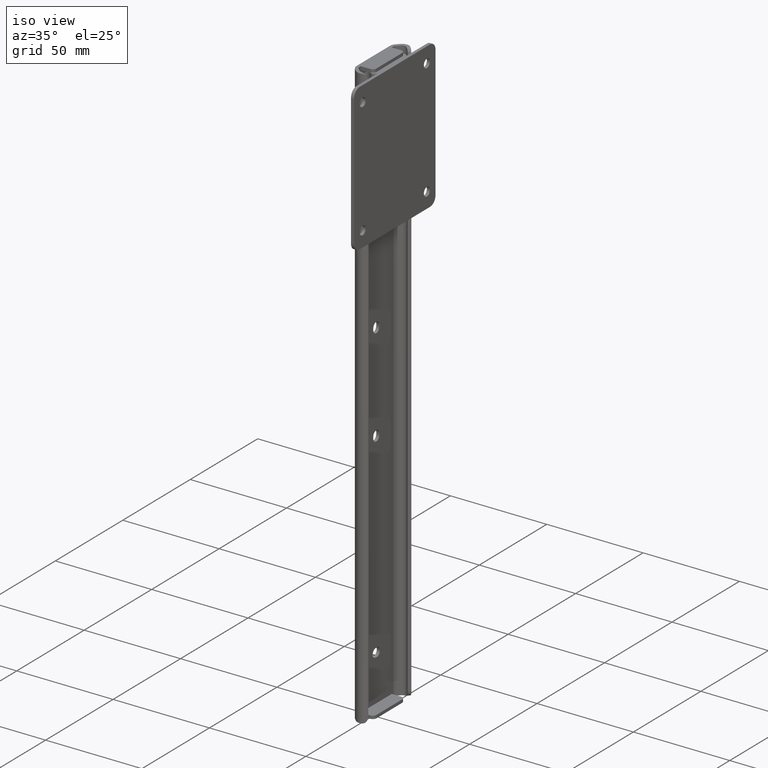
[diagram: clean part render]
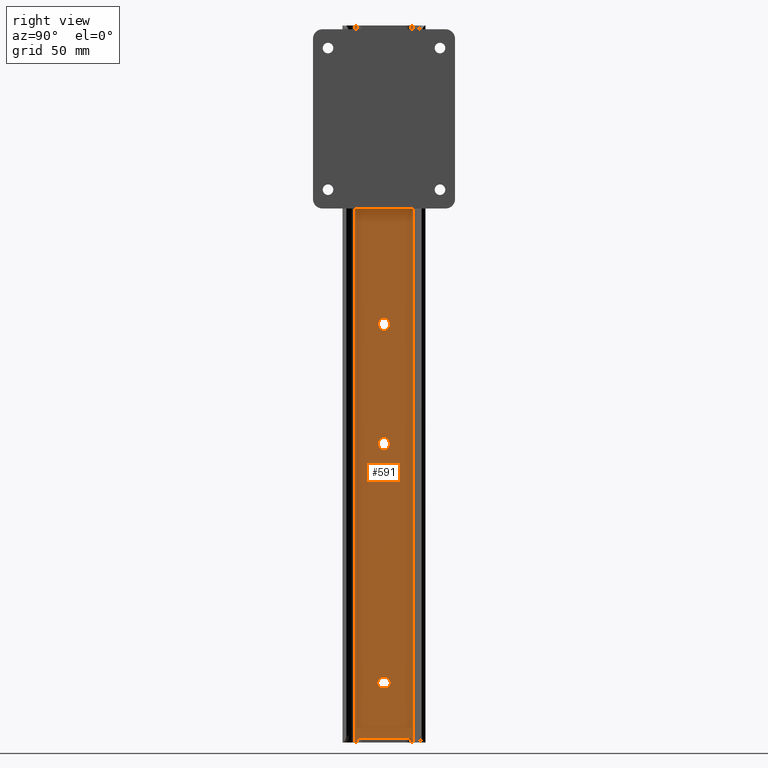
[diagram: tour spotlight — one face highlighted and labeled with its STEP entity id]
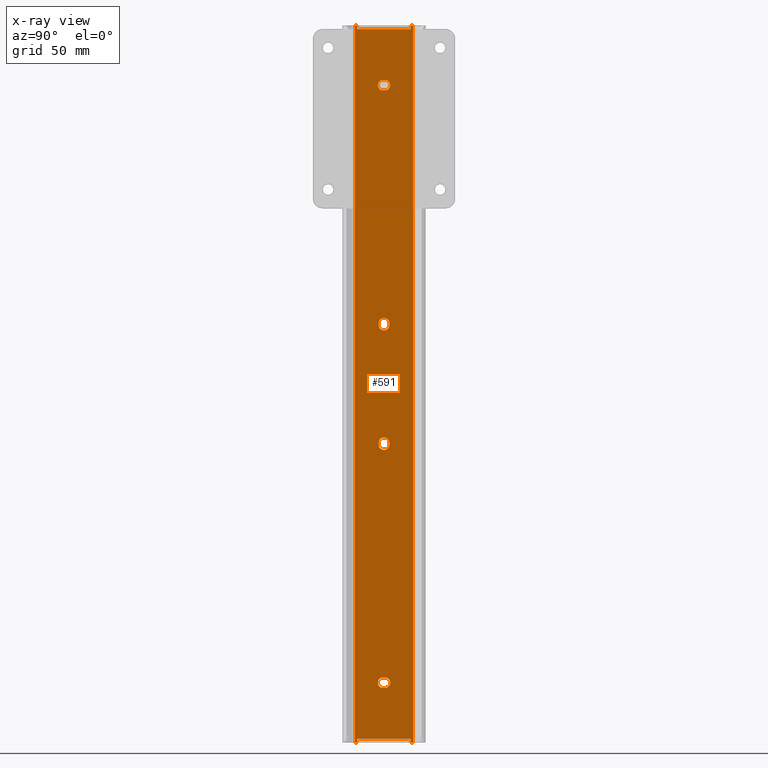
[diagram: x-ray of the same camera — body ghosted, this tour face saturated]
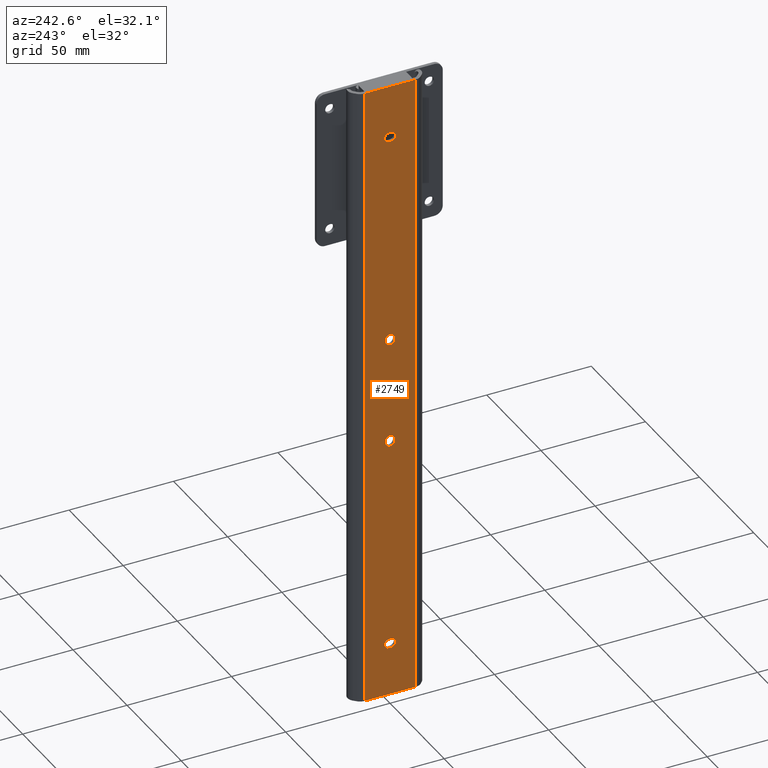
[diagram: tour spotlight — one face highlighted and labeled with its STEP entity id]
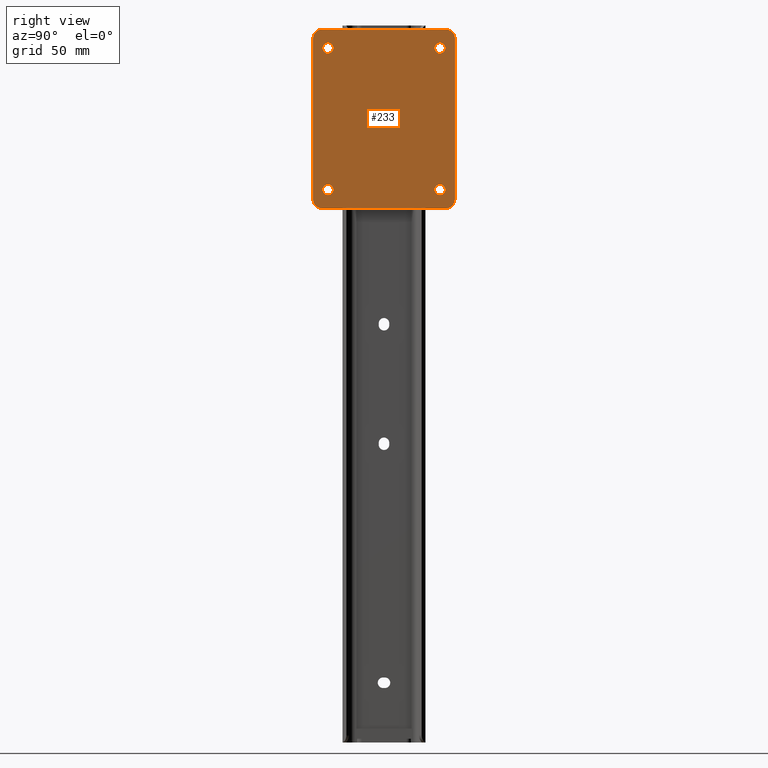
[diagram: tour spotlight — one face highlighted and labeled with its STEP entity id]
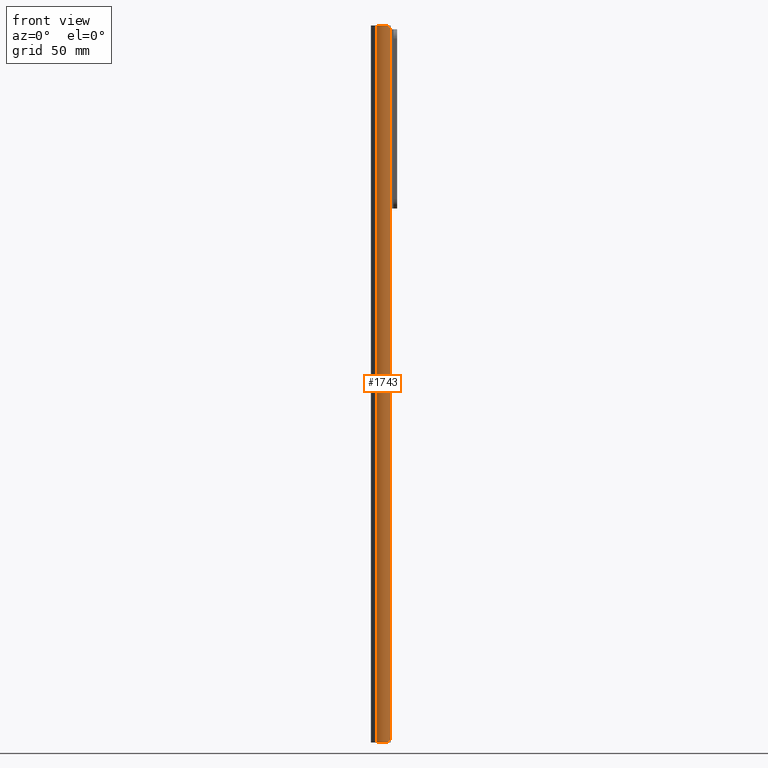
[diagram: tour spotlight — one face highlighted and labeled with its STEP entity id]
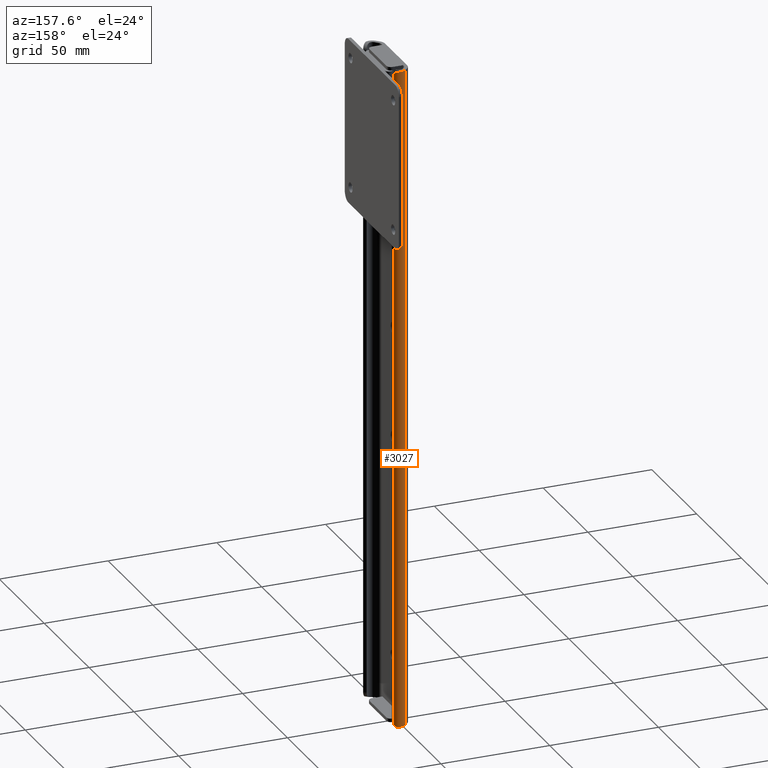
[diagram: tour spotlight — one face highlighted and labeled with its STEP entity id]
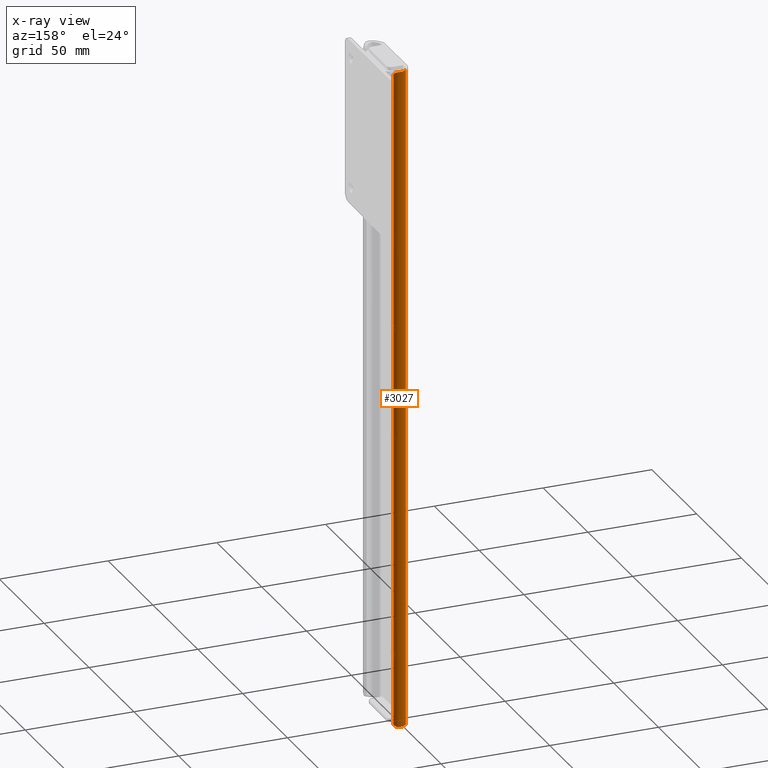
[diagram: x-ray of the same camera — body ghosted, this tour face saturated]
A machine part: a face-by-face anatomy tour. The part has 98 B-rep faces; the first image is the clean iso view, then the 5 largest visible faces are spotlighted one at a time (largest first), each with its STEP entity span.

Face 1 — right view, entity #591. An x-ray twin of the same camera follows (body ghosted, this face saturated) — the face is partly hidden behind the body. In plain terms, the highlighted planar face has unit normal (1, 0, 0).
Definition (entity closure, byte-faithful):
#35 = VECTOR ( 'NONE', #3319, 1000.000000000000000 ) ;
#38 = DIRECTION ( 'NONE',  ( 1.000000000000000000, 0.0000000000000000000, 0.0000000000000000000 ) ) ;
#74 = DIRECTION ( 'NONE',  ( 1.000000000000000000, 0.0000000000000000000, 0.0000000000000000000 ) ) ;
#83 = CIRCLE ( 'NONE', #2494, 2.250000000000001776 ) ;
#100 = ORIENTED_EDGE ( 'NONE', *, *, #3259, .F. ) ;
#107 = AXIS2_PLACEMENT_3D ( 'NONE', #3727, #603, #259 ) ;
#135 = LINE ( 'NONE', #2341, #3475 ) ;
#158 = VECTOR ( 'NONE', #1185, 1000.000000000000000 ) ;
#167 = LINE ( 'NONE', #2469, #710 ) ;
#252 = CARTESIAN_POINT ( 'NONE',  ( 1.600000000000080469, 0.4000000000000016875, -27.65000000000000213 ) ) ;
#259 = DIRECTION ( 'NONE',  ( 0.0000000000000000000, 0.0000000000000000000, -1.000000000000000000 ) ) ;
#260 = EDGE_LOOP ( 'NONE', ( #923, #3500, #2757, #3651 ) ) ;
#262 = CARTESIAN_POINT ( 'NONE',  ( 1.600000000000080469, -11.50000000000000178, -303.2000000000000455 ) ) ;
#275 = VERTEX_POINT ( 'NONE', #252 ) ;
#291 = EDGE_CURVE ( 'NONE', #403, #3497, #83, .T. ) ;
#293 = DIRECTION ( 'NONE',  ( 1.000000000000000000, 0.0000000000000000000, 0.0000000000000000000 ) ) ;
#304 = CARTESIAN_POINT ( 'NONE',  ( 1.600000000000080469, 0.4000000000000016875, -279.3999999999999773 ) ) ;
#314 = LINE ( 'NONE', #1464, #158 ) ;
#370 = VERTEX_POINT ( 'NONE', #2968 ) ;
#392 = DIRECTION ( 'NONE',  ( -0.0000000000000000000, -1.000000000000000000, -0.0000000000000000000 ) ) ;
#396 = VERTEX_POINT ( 'NONE', #1241 ) ;
#400 = EDGE_CURVE ( 'NONE', #559, #1397, #2261, .T. ) ;
#403 = VERTEX_POINT ( 'NONE', #2325 ) ;
#404 = CARTESIAN_POINT ( 'NONE',  ( 1.600000000000080469, 0.4000000000000016875, -25.39999999999999858 ) ) ;
#429 = CARTESIAN_POINT ( 'NONE',  ( 1.600000000000080469, 2.249999999999999556, -126.5999999999999943 ) ) ;
#485 = ORIENTED_EDGE ( 'NONE', *, *, #3096, .F. ) ;
#538 = DIRECTION ( 'NONE',  ( 0.0000000000000000000, 1.000000000000000000, 0.0000000000000000000 ) ) ;
#548 = CARTESIAN_POINT ( 'NONE',  ( 1.600000000000080469, -0.4000000000000013545, -27.65000000000000213 ) ) ;
#557 = LINE ( 'NONE', #1169, #763 ) ;
#559 = VERTEX_POINT ( 'NONE', #3252 ) ;
#569 = ORIENTED_EDGE ( 'NONE', *, *, #1671, .F. ) ;
#574 = DIRECTION ( 'NONE',  ( -0.0000000000000000000, -0.0000000000000000000, 1.000000000000000000 ) ) ;
#591 = ADVANCED_FACE ( 'NONE', ( #3212, #3509, #933, #627, #1517 ), #3528, .T. ) ;
#592 = VERTEX_POINT ( 'NONE', #1777 ) ;
#603 = DIRECTION ( 'NONE',  ( 1.000000000000000000, 0.0000000000000000000, 0.0000000000000000000 ) ) ;
#620 = CARTESIAN_POINT ( 'NONE',  ( 1.600000000000080469, -0.4000000000000013545, -23.14999999999999858 ) ) ;
#627 = FACE_BOUND ( 'NONE', #1481, .T. ) ;
#643 = CARTESIAN_POINT ( 'NONE',  ( 1.600000000000080469, 0.0000000000000000000, -126.5999999999999943 ) ) ;
#645 = AXIS2_PLACEMENT_3D ( 'NONE', #304, #1198, #2599 ) ;
#652 = DIRECTION ( 'NONE',  ( 0.0000000000000000000, 0.0000000000000000000, -1.000000000000000000 ) ) ;
#681 = CARTESIAN_POINT ( 'NONE',  ( 1.600000000000080469, -2.249999999999999556, -127.4000000000000199 ) ) ;
#689 = VERTEX_POINT ( 'NONE', #2609 ) ;
#690 = CARTESIAN_POINT ( 'NONE',  ( 1.600000000000080469, -11.50000000000000178, -1.600000000000000089 ) ) ;
#701 = EDGE_CURVE ( 'NONE', #370, #3374, #1210, .T. ) ;
#710 = VECTOR ( 'NONE', #3622, 1000.000000000000000 ) ;
#725 = CARTESIAN_POINT ( 'NONE',  ( 1.600000000000080469, -11.50000000000000178, 0.0000000000000000000 ) ) ;
#760 = CIRCLE ( 'NONE', #645, 2.249999999999974243 ) ;
#763 = VECTOR ( 'NONE', #2310, 1000.000000000000000 ) ;
#839 = VECTOR ( 'NONE', #2956, 1000.000000000000000 ) ;
#847 = LINE ( 'NONE', #3102, #2687 ) ;
#860 = DIRECTION ( 'NONE',  ( -3.016910393003142464E-15, -1.000000000000000000, -0.0000000000000000000 ) ) ;
#872 = ORIENTED_EDGE ( 'NONE', *, *, #2139, .F. ) ;
#884 = VECTOR ( 'NONE', #2464, 1000.000000000000000 ) ;
#888 = AXIS2_PLACEMENT_3D ( 'NONE', #1504, #1208, #3480 ) ;
#911 = CARTESIAN_POINT ( 'NONE',  ( 1.600000000000045830, -11.50000000000000178, -303.2000000000000455 ) ) ;
#913 = DIRECTION ( 'NONE',  ( 2.530039036117736784E-15, 1.000000000000000000, -0.0000000000000000000 ) ) ;
#917 = EDGE_CURVE ( 'NONE', #949, #2071, #1828, .T. ) ;
#920 = ORIENTED_EDGE ( 'NONE', *, *, #2772, .F. ) ;
#923 = ORIENTED_EDGE ( 'NONE', *, *, #1576, .F. ) ;
#924 = DIRECTION ( 'NONE',  ( 2.530039036117736784E-15, 1.000000000000000000, -0.0000000000000000000 ) ) ;
#933 = FACE_BOUND ( 'NONE', #1133, .T. ) ;
#949 = VERTEX_POINT ( 'NONE', #1338 ) ;
#955 = DIRECTION ( 'NONE',  ( 0.0000000000000000000, 0.0000000000000000000, -1.000000000000000000 ) ) ;
#959 = LINE ( 'NONE', #980, #3107 ) ;
#963 = VERTEX_POINT ( 'NONE', #1073 ) ;
#980 = CARTESIAN_POINT ( 'NONE',  ( 1.600000000000045830, -1.734723475976807094E-15, -1.600000000000000089 ) ) ;
#1014 = CARTESIAN_POINT ( 'NONE',  ( 1.600000000000080469, 2.249999999999999556, -127.4000000000000199 ) ) ;
#1032 = LINE ( 'NONE', #3676, #2938 ) ;
#1039 = LINE ( 'NONE', #3082, #884 ) ;
#1043 = CARTESIAN_POINT ( 'NONE',  ( 1.600000000000080469, -0.4000000000000010214, -281.6499999999999773 ) ) ;
#1073 = CARTESIAN_POINT ( 'NONE',  ( 1.600000000000080469, 12.34171572921639104, 0.0000000000000000000 ) ) ;
#1084 = ORIENTED_EDGE ( 'NONE', *, *, #1811, .T. ) ;
#1133 = EDGE_LOOP ( 'NONE', ( #1965, #3025, #3353, #1568, #920 ) ) ;
#1137 = VERTEX_POINT ( 'NONE', #1168 ) ;
#1144 = VECTOR ( 'NONE', #2610, 1000.000000000000000 ) ;
#1152 = ORIENTED_EDGE ( 'NONE', *, *, #1535, .F. ) ;
#1168 = CARTESIAN_POINT ( 'NONE',  ( 1.600000000000080469, -2.249999999999999556, -178.2000000000000171 ) ) ;
#1169 = CARTESIAN_POINT ( 'NONE',  ( 1.600000000000080469, 2.775557561562891351E-14, 0.0000000000000000000 ) ) ;
#1185 = DIRECTION ( 'NONE',  ( 0.0000000000000000000, 0.0000000000000000000, 1.000000000000000000 ) ) ;
#1190 = CIRCLE ( 'NONE', #1723, 2.250000000000001776 ) ;
#1192 = EDGE_CURVE ( 'NONE', #3654, #2251, #959, .T. ) ;
#1198 = DIRECTION ( 'NONE',  ( 1.000000000000000000, 0.0000000000000000000, 0.0000000000000000000 ) ) ;
#1208 = DIRECTION ( 'NONE',  ( 1.000000000000000000, 0.0000000000000000000, 0.0000000000000000000 ) ) ;
#1210 = LINE ( 'NONE', #1227, #1422 ) ;
#1215 = DIRECTION ( 'NONE',  ( 0.0000000000000000000, 0.0000000000000000000, -1.000000000000000000 ) ) ;
#1227 = CARTESIAN_POINT ( 'NONE',  ( 1.600000000000080469, 2.775557561562891351E-14, -304.8000000000000114 ) ) ;
#1228 = CARTESIAN_POINT ( 'NONE',  ( 1.600000000000051381, -11.49999999999999822, -304.8000000000000114 ) ) ;
#1233 = CARTESIAN_POINT ( 'NONE',  ( 1.600000000000080469, -0.4000000000000013545, -27.65000000000000924 ) ) ;
#1241 = CARTESIAN_POINT ( 'NONE',  ( 1.600000000000080469, 0.4000000000000016875, -281.6499999999999773 ) ) ;
#1265 = CIRCLE ( 'NONE', #2875, 2.250000000000001776 ) ;
#1289 = EDGE_CURVE ( 'NONE', #1651, #559, #3046, .T. ) ;
#1304 = VERTEX_POINT ( 'NONE', #725 ) ;
#1338 = CARTESIAN_POINT ( 'NONE',  ( 1.600000000000080469, 0.4000000000000012990, -277.1500000000000341 ) ) ;
#1342 = VERTEX_POINT ( 'NONE', #3639 ) ;
#1370 = EDGE_CURVE ( 'NONE', #275, #2647, #1190, .T. ) ;
#1397 = VERTEX_POINT ( 'NONE', #1014 ) ;
#1410 = CARTESIAN_POINT ( 'NONE',  ( 1.600000000000045830, -12.34171572921509075, -304.8000000000000114 ) ) ;
#1414 = EDGE_LOOP ( 'NONE', ( #2018, #1940, #3496, #100 ) ) ;
#1420 = DIRECTION ( 'NONE',  ( 1.000000000000000000, 0.0000000000000000000, 0.0000000000000000000 ) ) ;
#1422 = VECTOR ( 'NONE', #924, 1000.000000000000000 ) ;
#1439 = CIRCLE ( 'NONE', #107, 2.249999999999974243 ) ;
#1448 = DIRECTION ( 'NONE',  ( 0.0000000000000000000, 0.0000000000000000000, 1.000000000000000000 ) ) ;
#1464 = CARTESIAN_POINT ( 'NONE',  ( 1.600000000000080469, 11.50000000000000000, -1.600000000000000089 ) ) ;
#1466 = EDGE_CURVE ( 'NONE', #1137, #403, #1665, .T. ) ;
#1481 = EDGE_LOOP ( 'NONE', ( #485, #569, #3614, #2241, #2800 ) ) ;
#1504 = CARTESIAN_POINT ( 'NONE',  ( 1.600000000000080469, 0.0000000000000000000, -177.4000000000000057 ) ) ;
#1517 = FACE_BOUND ( 'NONE', #1414, .T. ) ;
#1521 = VERTEX_POINT ( 'NONE', #1233 ) ;
#1529 = DIRECTION ( 'NONE',  ( 1.000000000000000000, 0.0000000000000000000, 0.0000000000000000000 ) ) ;
#1535 = EDGE_CURVE ( 'NONE', #2903, #3374, #2900, .T. ) ;
#1547 = VECTOR ( 'NONE', #1920, 1000.000000000000000 ) ;
#1568 = ORIENTED_EDGE ( 'NONE', *, *, #1466, .F. ) ;
#1575 = DIRECTION ( 'NONE',  ( 1.000000000000000000, 0.0000000000000000000, 0.0000000000000000000 ) ) ;
#1576 = EDGE_CURVE ( 'NONE', #3454, #1521, #2685, .T. ) ;
#1609 = AXIS2_PLACEMENT_3D ( 'NONE', #2672, #1529, #2063 ) ;
#1611 = VECTOR ( 'NONE', #574, 1000.000000000000000 ) ;
#1626 = EDGE_CURVE ( 'NONE', #396, #949, #760, .T. ) ;
#1651 = VERTEX_POINT ( 'NONE', #681 ) ;
#1665 = CIRCLE ( 'NONE', #1851, 2.250000000000001776 ) ;
#1671 = EDGE_CURVE ( 'NONE', #1397, #2645, #3029, .T. ) ;
#1678 = CARTESIAN_POINT ( 'NONE',  ( 1.600000000000080469, -0.4000000000000010214, -281.6499999999999773 ) ) ;
#1680 = VERTEX_POINT ( 'NONE', #3299 ) ;
#1718 = EDGE_CURVE ( 'NONE', #1680, #1651, #1039, .T. ) ;
#1723 = AXIS2_PLACEMENT_3D ( 'NONE', #404, #1575, #2699 ) ;
#1746 = DIRECTION ( 'NONE',  ( 0.0000000000000000000, 0.0000000000000000000, -1.000000000000000000 ) ) ;
#1777 = CARTESIAN_POINT ( 'NONE',  ( 1.600000000000080469, 12.34171572921639104, -304.8000000000000114 ) ) ;
#1798 = DIRECTION ( 'NONE',  ( 1.000000000000000000, 0.0000000000000000000, 0.0000000000000000000 ) ) ;
#1801 = CARTESIAN_POINT ( 'NONE',  ( 1.600000000000080469, 11.50000000000000000, 0.0000000000000000000 ) ) ;
#1808 = ORIENTED_EDGE ( 'NONE', *, *, #2315, .F. ) ;
#1811 = EDGE_CURVE ( 'NONE', #1342, #689, #2780, .T. ) ;
#1828 = LINE ( 'NONE', #2971, #1966 ) ;
#1851 = AXIS2_PLACEMENT_3D ( 'NONE', #2509, #1420, #2303 ) ;
#1888 = VERTEX_POINT ( 'NONE', #2296 ) ;
#1905 = ORIENTED_EDGE ( 'NONE', *, *, #701, .T. ) ;
#1920 = DIRECTION ( 'NONE',  ( -0.0000000000000000000, -0.0000000000000000000, 1.000000000000000000 ) ) ;
#1927 = EDGE_CURVE ( 'NONE', #3497, #2623, #2837, .T. ) ;
#1940 = ORIENTED_EDGE ( 'NONE', *, *, #917, .F. ) ;
#1945 = EDGE_CURVE ( 'NONE', #592, #963, #847, .T. ) ;
#1965 = ORIENTED_EDGE ( 'NONE', *, *, #2039, .F. ) ;
#1966 = VECTOR ( 'NONE', #392, 1000.000000000000000 ) ;
#1967 = EDGE_CURVE ( 'NONE', #2511, #963, #557, .T. ) ;
#1974 = CARTESIAN_POINT ( 'NONE',  ( 1.600000000000080469, 11.50000000000000000, -1.600000000000000089 ) ) ;
#2009 = LINE ( 'NONE', #1410, #3482 ) ;
#2018 = ORIENTED_EDGE ( 'NONE', *, *, #3284, .F. ) ;
#2038 = DIRECTION ( 'NONE',  ( 0.0000000000000000000, 1.000000000000000000, 0.0000000000000000000 ) ) ;
#2039 = EDGE_CURVE ( 'NONE', #2623, #2164, #3053, .T. ) ;
#2063 = DIRECTION ( 'NONE',  ( 0.0000000000000000000, 0.0000000000000000000, -1.000000000000000000 ) ) ;
#2071 = VERTEX_POINT ( 'NONE', #2932 ) ;
#2083 = CARTESIAN_POINT ( 'NONE',  ( 1.600000000000080469, 2.775557561562891351E-14, -304.8000000000000114 ) ) ;
#2119 = LINE ( 'NONE', #3262, #1144 ) ;
#2133 = CARTESIAN_POINT ( 'NONE',  ( 1.600000000000080469, -0.4000000000000013545, -23.14999999999999858 ) ) ;
#2139 = EDGE_CURVE ( 'NONE', #3654, #2511, #314, .T. ) ;
#2164 = VERTEX_POINT ( 'NONE', #3345 ) ;
#2201 = AXIS2_PLACEMENT_3D ( 'NONE', #2622, #38, #652 ) ;
#2219 = VECTOR ( 'NONE', #2558, 1000.000000000000000 ) ;
#2241 = ORIENTED_EDGE ( 'NONE', *, *, #1289, .F. ) ;
#2246 = CARTESIAN_POINT ( 'NONE',  ( 1.600000000000080469, 2.249999999999999556, -126.5999999999999943 ) ) ;
#2251 = VERTEX_POINT ( 'NONE', #690 ) ;
#2254 = CARTESIAN_POINT ( 'NONE',  ( 1.600000000000080469, 1.469576158976865708E-16, -178.2000000000000171 ) ) ;
#2261 = CIRCLE ( 'NONE', #2201, 2.250000000000001776 ) ;
#2294 = EDGE_CURVE ( 'NONE', #689, #592, #135, .T. ) ;
#2296 = CARTESIAN_POINT ( 'NONE',  ( 1.600000000000045830, -12.34171572921509075, 0.0000000000000000000 ) ) ;
#2303 = DIRECTION ( 'NONE',  ( 0.0000000000000000000, 0.0000000000000000000, -1.000000000000000000 ) ) ;
#2310 = DIRECTION ( 'NONE',  ( 0.0000000000000000000, 1.000000000000000000, 0.0000000000000000000 ) ) ;
#2315 = EDGE_CURVE ( 'NONE', #1888, #1304, #2814, .T. ) ;
#2325 = CARTESIAN_POINT ( 'NONE',  ( 1.600000000000080469, 1.469576158976865708E-16, -180.4500000000000171 ) ) ;
#2341 = CARTESIAN_POINT ( 'NONE',  ( 1.600000000000080469, 2.775557561562891351E-14, -304.8000000000000114 ) ) ;
#2400 = ORIENTED_EDGE ( 'NONE', *, *, #1967, .F. ) ;
#2423 = ORIENTED_EDGE ( 'NONE', *, *, #2653, .T. ) ;
#2464 = DIRECTION ( 'NONE',  ( 0.0000000000000000000, 0.0000000000000000000, -1.000000000000000000 ) ) ;
#2469 = CARTESIAN_POINT ( 'NONE',  ( 1.600000000000080469, -11.50000000000000178, -1.600000000000000089 ) ) ;
#2473 = DIRECTION ( 'NONE',  ( 1.000000000000000000, 0.0000000000000000000, 0.0000000000000000000 ) ) ;
#2494 = AXIS2_PLACEMENT_3D ( 'NONE', #2254, #293, #1746 ) ;
#2509 = CARTESIAN_POINT ( 'NONE',  ( 1.600000000000080469, 1.469576158976865708E-16, -178.2000000000000171 ) ) ;
#2511 = VERTEX_POINT ( 'NONE', #1801 ) ;
#2558 = DIRECTION ( 'NONE',  ( 0.0000000000000000000, 1.000000000000000000, 0.0000000000000000000 ) ) ;
#2599 = DIRECTION ( 'NONE',  ( 0.0000000000000000000, 0.0000000000000000000, -1.000000000000000000 ) ) ;
#2609 = CARTESIAN_POINT ( 'NONE',  ( 1.600000000000045830, 11.49999999999999822, -304.8000000000000114 ) ) ;
#2610 = DIRECTION ( 'NONE',  ( 1.508455196501485838E-15, 1.000000000000000000, 0.0000000000000000000 ) ) ;
#2622 = CARTESIAN_POINT ( 'NONE',  ( 1.600000000000080469, 1.469576158976865708E-16, -127.4000000000000199 ) ) ;
#2623 = VERTEX_POINT ( 'NONE', #3636 ) ;
#2624 = EDGE_LOOP ( 'NONE', ( #872, #2915, #2423, #1808, #3446, #1905, #1152, #3015, #1084, #3265, #3414, #2400 ) ) ;
#2645 = VERTEX_POINT ( 'NONE', #2246 ) ;
#2647 = VERTEX_POINT ( 'NONE', #3034 ) ;
#2653 = EDGE_CURVE ( 'NONE', #2251, #1304, #167, .T. ) ;
#2672 = CARTESIAN_POINT ( 'NONE',  ( 1.600000000000080469, -0.4000000000000013545, -25.39999999999999858 ) ) ;
#2685 = CIRCLE ( 'NONE', #1609, 2.250000000000001776 ) ;
#2687 = VECTOR ( 'NONE', #1448, 1000.000000000000000 ) ;
#2699 = DIRECTION ( 'NONE',  ( 0.0000000000000000000, 0.0000000000000000000, -1.000000000000000000 ) ) ;
#2734 = CARTESIAN_POINT ( 'NONE',  ( 1.600000000000080469, 1.469576158976865708E-16, -127.4000000000000199 ) ) ;
#2757 = ORIENTED_EDGE ( 'NONE', *, *, #1370, .F. ) ;
#2765 = CARTESIAN_POINT ( 'NONE',  ( 1.600000000000045830, 11.49999999999999822, -303.2000000000000455 ) ) ;
#2772 = EDGE_CURVE ( 'NONE', #2164, #1137, #1032, .T. ) ;
#2780 = LINE ( 'NONE', #2765, #35 ) ;
#2798 = AXIS2_PLACEMENT_3D ( 'NONE', #2083, #74, #955 ) ;
#2800 = ORIENTED_EDGE ( 'NONE', *, *, #1718, .F. ) ;
#2814 = LINE ( 'NONE', #3097, #3598 ) ;
#2837 = LINE ( 'NONE', #3159, #1611 ) ;
#2859 = AXIS2_PLACEMENT_3D ( 'NONE', #2734, #2473, #3624 ) ;
#2875 = AXIS2_PLACEMENT_3D ( 'NONE', #643, #1798, #2943 ) ;
#2900 = LINE ( 'NONE', #911, #3235 ) ;
#2903 = VERTEX_POINT ( 'NONE', #262 ) ;
#2915 = ORIENTED_EDGE ( 'NONE', *, *, #1192, .T. ) ;
#2932 = CARTESIAN_POINT ( 'NONE',  ( 1.600000000000080469, -0.4000000000000018541, -277.1500000000000341 ) ) ;
#2938 = VECTOR ( 'NONE', #3608, 1000.000000000000000 ) ;
#2943 = DIRECTION ( 'NONE',  ( 0.0000000000000000000, 0.0000000000000000000, -1.000000000000000000 ) ) ;
#2956 = DIRECTION ( 'NONE',  ( -0.0000000000000000000, -1.000000000000000000, -0.0000000000000000000 ) ) ;
#2968 = CARTESIAN_POINT ( 'NONE',  ( 1.600000000000045830, -12.34171572921509075, -304.8000000000000114 ) ) ;
#2971 = CARTESIAN_POINT ( 'NONE',  ( 1.600000000000080469, -0.4000000000000018541, -277.1500000000000341 ) ) ;
#3015 = ORIENTED_EDGE ( 'NONE', *, *, #3422, .T. ) ;
#3025 = ORIENTED_EDGE ( 'NONE', *, *, #1927, .F. ) ;
#3029 = LINE ( 'NONE', #429, #1547 ) ;
#3034 = CARTESIAN_POINT ( 'NONE',  ( 1.600000000000080469, 0.4000000000000013545, -23.14999999999999858 ) ) ;
#3046 = CIRCLE ( 'NONE', #2859, 2.250000000000001776 ) ;
#3053 = CIRCLE ( 'NONE', #888, 2.250000000000001776 ) ;
#3061 = VECTOR ( 'NONE', #2038, 1000.000000000000000 ) ;
#3082 = CARTESIAN_POINT ( 'NONE',  ( 1.600000000000080469, -2.249999999999999556, -126.5999999999999943 ) ) ;
#3096 = EDGE_CURVE ( 'NONE', #2645, #1680, #1265, .T. ) ;
#3097 = CARTESIAN_POINT ( 'NONE',  ( 1.600000000000080469, 2.775557561562891351E-14, 0.0000000000000000000 ) ) ;
#3102 = CARTESIAN_POINT ( 'NONE',  ( 1.600000000000080469, 12.34171572921639104, -304.8000000000000114 ) ) ;
#3107 = VECTOR ( 'NONE', #860, 1000.000000000000000 ) ;
#3146 = VERTEX_POINT ( 'NONE', #1043 ) ;
#3159 = CARTESIAN_POINT ( 'NONE',  ( 1.600000000000080469, 2.249999999999999556, -177.4000000000000057 ) ) ;
#3179 = DIRECTION ( 'NONE',  ( 0.0000000000000000000, 0.0000000000000000000, 1.000000000000000000 ) ) ;
#3212 = FACE_OUTER_BOUND ( 'NONE', #2624, .T. ) ;
#3235 = VECTOR ( 'NONE', #1215, 1000.000000000000000 ) ;
#3242 = EDGE_CURVE ( 'NONE', #1521, #275, #3375, .T. ) ;
#3252 = CARTESIAN_POINT ( 'NONE',  ( 1.600000000000080469, 1.469576158976865708E-16, -129.6500000000000057 ) ) ;
#3259 = EDGE_CURVE ( 'NONE', #3146, #396, #3392, .T. ) ;
#3262 = CARTESIAN_POINT ( 'NONE',  ( 1.600000000000045830, -11.50000000000000178, -303.2000000000000455 ) ) ;
#3265 = ORIENTED_EDGE ( 'NONE', *, *, #2294, .T. ) ;
#3284 = EDGE_CURVE ( 'NONE', #2071, #3146, #1439, .T. ) ;
#3299 = CARTESIAN_POINT ( 'NONE',  ( 1.600000000000080469, -2.249999999999999556, -126.5999999999999943 ) ) ;
#3319 = DIRECTION ( 'NONE',  ( 0.0000000000000000000, 0.0000000000000000000, -1.000000000000000000 ) ) ;
#3345 = CARTESIAN_POINT ( 'NONE',  ( 1.600000000000080469, -2.249999999999999556, -177.4000000000000057 ) ) ;
#3353 = ORIENTED_EDGE ( 'NONE', *, *, #291, .F. ) ;
#3374 = VERTEX_POINT ( 'NONE', #1228 ) ;
#3375 = LINE ( 'NONE', #548, #2219 ) ;
#3392 = LINE ( 'NONE', #1678, #3061 ) ;
#3414 = ORIENTED_EDGE ( 'NONE', *, *, #1945, .T. ) ;
#3422 = EDGE_CURVE ( 'NONE', #2903, #1342, #2119, .T. ) ;
#3438 = EDGE_CURVE ( 'NONE', #2647, #3454, #3564, .T. ) ;
#3446 = ORIENTED_EDGE ( 'NONE', *, *, #3662, .F. ) ;
#3454 = VERTEX_POINT ( 'NONE', #2133 ) ;
#3475 = VECTOR ( 'NONE', #913, 1000.000000000000000 ) ;
#3480 = DIRECTION ( 'NONE',  ( 0.0000000000000000000, 0.0000000000000000000, -1.000000000000000000 ) ) ;
#3482 = VECTOR ( 'NONE', #3179, 1000.000000000000000 ) ;
#3496 = ORIENTED_EDGE ( 'NONE', *, *, #1626, .F. ) ;
#3497 = VERTEX_POINT ( 'NONE', #3585 ) ;
#3500 = ORIENTED_EDGE ( 'NONE', *, *, #3438, .F. ) ;
#3509 = FACE_BOUND ( 'NONE', #260, .T. ) ;
#3528 = PLANE ( 'NONE',  #2798 ) ;
#3564 = LINE ( 'NONE', #620, #839 ) ;
#3585 = CARTESIAN_POINT ( 'NONE',  ( 1.600000000000080469, 2.249999999999999556, -178.2000000000000171 ) ) ;
#3598 = VECTOR ( 'NONE', #538, 1000.000000000000000 ) ;
#3608 = DIRECTION ( 'NONE',  ( 0.0000000000000000000, 0.0000000000000000000, -1.000000000000000000 ) ) ;
#3614 = ORIENTED_EDGE ( 'NONE', *, *, #400, .F. ) ;
#3622 = DIRECTION ( 'NONE',  ( 0.0000000000000000000, 0.0000000000000000000, 1.000000000000000000 ) ) ;
#3624 = DIRECTION ( 'NONE',  ( 0.0000000000000000000, 0.0000000000000000000, -1.000000000000000000 ) ) ;
#3636 = CARTESIAN_POINT ( 'NONE',  ( 1.600000000000080469, 2.249999999999999556, -177.4000000000000057 ) ) ;
#3639 = CARTESIAN_POINT ( 'NONE',  ( 1.600000000000080469, 11.49999999999999822, -303.2000000000000455 ) ) ;
#3651 = ORIENTED_EDGE ( 'NONE', *, *, #3242, .F. ) ;
#3654 = VERTEX_POINT ( 'NONE', #1974 ) ;
#3662 = EDGE_CURVE ( 'NONE', #370, #1888, #2009, .T. ) ;
#3676 = CARTESIAN_POINT ( 'NONE',  ( 1.600000000000080469, -2.249999999999999556, -177.4000000000000057 ) ) ;
#3727 = CARTESIAN_POINT ( 'NONE',  ( 1.600000000000080469, -0.4000000000000016875, -279.3999999999999773 ) ) ;

Face 2 — auxiliary view, entity #2749. In plain terms, the highlighted planar face has unit normal (-1, -0, 0).
Definition (entity closure, byte-faithful):
#4 = LINE ( 'NONE', #2129, #338 ) ;
#6 = VERTEX_POINT ( 'NONE', #125 ) ;
#28 = CIRCLE ( 'NONE', #822, 2.249999999999974243 ) ;
#34 = LINE ( 'NONE', #977, #1307 ) ;
#53 = CARTESIAN_POINT ( 'NONE',  ( 1.518023421670645226E-14, -2.249999999999999556, -178.2000000000000171 ) ) ;
#63 = CARTESIAN_POINT ( 'NONE',  ( 8.044780119842442900E-14, -2.249999999999999556, -177.4000000000000057 ) ) ;
#66 = DIRECTION ( 'NONE',  ( 1.000000000000000000, 0.0000000000000000000, 0.0000000000000000000 ) ) ;
#70 = EDGE_CURVE ( 'NONE', #3094, #3686, #768, .T. ) ;
#75 = EDGE_CURVE ( 'NONE', #2072, #3030, #2537, .T. ) ;
#90 = CARTESIAN_POINT ( 'NONE',  ( 8.044780119842442900E-14, 0.4000000000000012990, -277.1500000000000341 ) ) ;
#119 = VERTEX_POINT ( 'NONE', #1376 ) ;
#125 = CARTESIAN_POINT ( 'NONE',  ( 1.518023421670645226E-14, -2.249999999999999556, -127.4000000000000199 ) ) ;
#132 = CARTESIAN_POINT ( 'NONE',  ( 8.044780119842442900E-14, 2.249999999999999556, -177.4000000000000057 ) ) ;
#147 = DIRECTION ( 'NONE',  ( -1.000000000000000000, -6.746770762980646676E-15, 0.0000000000000000000 ) ) ;
#182 = VERTEX_POINT ( 'NONE', #3141 ) ;
#190 = EDGE_CURVE ( 'NONE', #1619, #1348, #3385, .T. ) ;
#199 = VERTEX_POINT ( 'NONE', #2870 ) ;
#204 = VERTEX_POINT ( 'NONE', #876 ) ;
#212 = DIRECTION ( 'NONE',  ( 0.0000000000000000000, 0.0000000000000000000, -1.000000000000000000 ) ) ;
#240 = VERTEX_POINT ( 'NONE', #3680 ) ;
#311 = DIRECTION ( 'NONE',  ( 1.000000000000000000, 0.0000000000000000000, 0.0000000000000000000 ) ) ;
#321 = DIRECTION ( 'NONE',  ( 0.0000000000000000000, 1.000000000000000000, 0.0000000000000000000 ) ) ;
#336 = AXIS2_PLACEMENT_3D ( 'NONE', #3186, #2648, #601 ) ;
#338 = VECTOR ( 'NONE', #2277, 1000.000000000000000 ) ;
#365 = DIRECTION ( 'NONE',  ( 1.000000000000000000, 0.0000000000000000000, 0.0000000000000000000 ) ) ;
#390 = VERTEX_POINT ( 'NONE', #2112 ) ;
#448 = ORIENTED_EDGE ( 'NONE', *, *, #631, .T. ) ;
#472 = CIRCLE ( 'NONE', #3059, 2.249999999999974243 ) ;
#491 = CARTESIAN_POINT ( 'NONE',  ( 8.044780119842442900E-14, -2.249999999999999556, -126.5999999999999943 ) ) ;
#506 = CARTESIAN_POINT ( 'NONE',  ( 8.044780119842442900E-14, -0.4000000000000013545, -27.65000000000000213 ) ) ;
#546 = EDGE_CURVE ( 'NONE', #1676, #3686, #34, .T. ) ;
#555 = LINE ( 'NONE', #1704, #1867 ) ;
#575 = AXIS2_PLACEMENT_3D ( 'NONE', #825, #1692, #212 ) ;
#579 = CIRCLE ( 'NONE', #3707, 2.250000000000001776 ) ;
#601 = DIRECTION ( 'NONE',  ( 0.0000000000000000000, 0.0000000000000000000, -1.000000000000000000 ) ) ;
#608 = LINE ( 'NONE', #1755, #2154 ) ;
#619 = DIRECTION ( 'NONE',  ( -0.0000000000000000000, -1.000000000000000000, -0.0000000000000000000 ) ) ;
#624 = CARTESIAN_POINT ( 'NONE',  ( 1.006139616066548115E-13, 12.34171572921639104, 0.0000000000000000000 ) ) ;
#629 = EDGE_CURVE ( 'NONE', #2068, #119, #1845, .T. ) ;
#631 = EDGE_CURVE ( 'NONE', #1450, #390, #905, .T. ) ;
#637 = DIRECTION ( 'NONE',  ( 0.0000000000000000000, 0.0000000000000000000, -1.000000000000000000 ) ) ;
#661 = CARTESIAN_POINT ( 'NONE',  ( 8.044780119842442900E-14, 2.249999999999999556, -126.5999999999999943 ) ) ;
#677 = EDGE_CURVE ( 'NONE', #6, #2068, #818, .T. ) ;
#682 = EDGE_CURVE ( 'NONE', #3030, #1324, #2438, .T. ) ;
#693 = VECTOR ( 'NONE', #1114, 1000.000000000000000 ) ;
#733 = ORIENTED_EDGE ( 'NONE', *, *, #546, .T. ) ;
#739 = DIRECTION ( 'NONE',  ( 6.746770762980646676E-15, -1.000000000000000000, 0.0000000000000000000 ) ) ;
#759 = CIRCLE ( 'NONE', #575, 2.250000000000001776 ) ;
#766 = AXIS2_PLACEMENT_3D ( 'NONE', #2543, #3362, #3092 ) ;
#768 = LINE ( 'NONE', #2520, #2737 ) ;
#787 = CARTESIAN_POINT ( 'NONE',  ( 8.044780119842442900E-14, -2.249999999999999556, -177.4000000000000057 ) ) ;
#818 = CIRCLE ( 'NONE', #1125, 2.250000000000001776 ) ;
#822 = AXIS2_PLACEMENT_3D ( 'NONE', #2779, #3665, #1352 ) ;
#825 = CARTESIAN_POINT ( 'NONE',  ( 8.044780119842442900E-14, -0.4000000000000013545, -25.39999999999999858 ) ) ;
#834 = VECTOR ( 'NONE', #3552, 1000.000000000000000 ) ;
#859 = CARTESIAN_POINT ( 'NONE',  ( 8.326672684688674053E-14, -12.34171572921509075, 0.0000000000000000000 ) ) ;
#870 = CARTESIAN_POINT ( 'NONE',  ( 8.044780119842442900E-14, 0.4000000000000013545, -23.14999999999999858 ) ) ;
#876 = CARTESIAN_POINT ( 'NONE',  ( 8.044780119842442900E-14, -2.249999999999999556, -126.5999999999999943 ) ) ;
#883 = DIRECTION ( 'NONE',  ( 0.0000000000000000000, 0.0000000000000000000, -1.000000000000000000 ) ) ;
#900 = CARTESIAN_POINT ( 'NONE',  ( 8.044780119842442900E-14, -0.4000000000000018541, -277.1500000000000341 ) ) ;
#905 = LINE ( 'NONE', #3163, #2680 ) ;
#966 = EDGE_CURVE ( 'NONE', #2409, #182, #28, .T. ) ;
#974 = DIRECTION ( 'NONE',  ( 0.0000000000000000000, 0.0000000000000000000, -1.000000000000000000 ) ) ;
#977 = CARTESIAN_POINT ( 'NONE',  ( 8.326672684688674053E-14, -12.34171572921509075, -304.8000000000000114 ) ) ;
#1000 = CARTESIAN_POINT ( 'NONE',  ( 8.326672684688674053E-14, -12.34171572921509075, -304.8000000000000114 ) ) ;
#1015 = ORIENTED_EDGE ( 'NONE', *, *, #3172, .T. ) ;
#1019 = AXIS2_PLACEMENT_3D ( 'NONE', #2472, #147, #739 ) ;
#1049 = EDGE_LOOP ( 'NONE', ( #1283, #1336, #2776, #3567, #2285 ) ) ;
#1077 = EDGE_CURVE ( 'NONE', #390, #2720, #759, .T. ) ;
#1081 = ORIENTED_EDGE ( 'NONE', *, *, #70, .F. ) ;
#1114 = DIRECTION ( 'NONE',  ( 0.0000000000000000000, 0.0000000000000000000, -1.000000000000000000 ) ) ;
#1125 = AXIS2_PLACEMENT_3D ( 'NONE', #2576, #66, #637 ) ;
#1128 = DIRECTION ( 'NONE',  ( -0.0000000000000000000, -0.0000000000000000000, 1.000000000000000000 ) ) ;
#1143 = EDGE_CURVE ( 'NONE', #2592, #204, #1906, .T. ) ;
#1149 = DIRECTION ( 'NONE',  ( -9.276809799097410005E-15, -1.000000000000000000, -0.0000000000000000000 ) ) ;
#1181 = AXIS2_PLACEMENT_3D ( 'NONE', #3725, #1486, #883 ) ;
#1201 = DIRECTION ( 'NONE',  ( 0.0000000000000000000, 0.0000000000000000000, 1.000000000000000000 ) ) ;
#1204 = VECTOR ( 'NONE', #2972, 1000.000000000000000 ) ;
#1206 = ORIENTED_EDGE ( 'NONE', *, *, #75, .T. ) ;
#1213 = EDGE_CURVE ( 'NONE', #3449, #3094, #4, .T. ) ;
#1251 = CARTESIAN_POINT ( 'NONE',  ( 8.044780119842442900E-14, 0.4000000000000016875, -279.3999999999999773 ) ) ;
#1254 = LINE ( 'NONE', #2694, #834 ) ;
#1283 = ORIENTED_EDGE ( 'NONE', *, *, #1143, .T. ) ;
#1307 = VECTOR ( 'NONE', #1201, 1000.000000000000000 ) ;
#1308 = DIRECTION ( 'NONE',  ( 0.0000000000000000000, 0.0000000000000000000, -1.000000000000000000 ) ) ;
#1324 = VERTEX_POINT ( 'NONE', #1879 ) ;
#1336 = ORIENTED_EDGE ( 'NONE', *, *, #2796, .T. ) ;
#1341 = ORIENTED_EDGE ( 'NONE', *, *, #1645, .T. ) ;
#1348 = VERTEX_POINT ( 'NONE', #132 ) ;
#1352 = DIRECTION ( 'NONE',  ( 0.0000000000000000000, 0.0000000000000000000, -1.000000000000000000 ) ) ;
#1362 = CARTESIAN_POINT ( 'NONE',  ( 8.044780119842442900E-14, 2.249999999999999556, -126.5999999999999943 ) ) ;
#1376 = CARTESIAN_POINT ( 'NONE',  ( 8.044780119842442900E-14, 2.249999999999999556, -127.4000000000000199 ) ) ;
#1398 = ORIENTED_EDGE ( 'NONE', *, *, #966, .T. ) ;
#1417 = EDGE_LOOP ( 'NONE', ( #3216, #2122, #1015, #448 ) ) ;
#1450 = VERTEX_POINT ( 'NONE', #870 ) ;
#1456 = DIRECTION ( 'NONE',  ( 0.0000000000000000000, 0.0000000000000000000, -1.000000000000000000 ) ) ;
#1486 = DIRECTION ( 'NONE',  ( 1.000000000000000000, 0.0000000000000000000, 0.0000000000000000000 ) ) ;
#1562 = EDGE_CURVE ( 'NONE', #1324, #1619, #579, .T. ) ;
#1589 = FACE_BOUND ( 'NONE', #1417, .T. ) ;
#1619 = VERTEX_POINT ( 'NONE', #1740 ) ;
#1642 = DIRECTION ( 'NONE',  ( 0.0000000000000000000, 0.0000000000000000000, -1.000000000000000000 ) ) ;
#1645 = EDGE_CURVE ( 'NONE', #182, #199, #608, .T. ) ;
#1676 = VERTEX_POINT ( 'NONE', #1000 ) ;
#1692 = DIRECTION ( 'NONE',  ( 1.000000000000000000, 0.0000000000000000000, 0.0000000000000000000 ) ) ;
#1704 = CARTESIAN_POINT ( 'NONE',  ( 0.0000000000000000000, 0.0000000000000000000, -304.8000000000000114 ) ) ;
#1714 = VECTOR ( 'NONE', #1128, 1000.000000000000000 ) ;
#1724 = CARTESIAN_POINT ( 'NONE',  ( 8.044780119842442900E-14, 2.249999999999999556, -177.4000000000000057 ) ) ;
#1730 = CIRCLE ( 'NONE', #766, 2.250000000000001776 ) ;
#1740 = CARTESIAN_POINT ( 'NONE',  ( 8.044780119842442900E-14, 2.249999999999999556, -178.2000000000000171 ) ) ;
#1755 = CARTESIAN_POINT ( 'NONE',  ( 8.044780119842442900E-14, -0.4000000000000010214, -281.6499999999999773 ) ) ;
#1785 = CARTESIAN_POINT ( 'NONE',  ( 8.044780119842442900E-14, 1.469576158976865708E-16, -129.6500000000000057 ) ) ;
#1829 = LINE ( 'NONE', #661, #1204 ) ;
#1845 = CIRCLE ( 'NONE', #336, 2.250000000000001776 ) ;
#1862 = CIRCLE ( 'NONE', #2336, 2.250000000000001776 ) ;
#1867 = VECTOR ( 'NONE', #1149, 1000.000000000000000 ) ;
#1879 = CARTESIAN_POINT ( 'NONE',  ( 8.044780119842442900E-14, 1.469576158976865708E-16, -180.4500000000000171 ) ) ;
#1892 = FACE_OUTER_BOUND ( 'NONE', #1939, .T. ) ;
#1906 = CIRCLE ( 'NONE', #3412, 2.250000000000001776 ) ;
#1939 = EDGE_LOOP ( 'NONE', ( #1081, #3084, #2173, #733 ) ) ;
#1994 = DIRECTION ( 'NONE',  ( -0.0000000000000000000, -1.000000000000000000, -0.0000000000000000000 ) ) ;
#2040 = ORIENTED_EDGE ( 'NONE', *, *, #682, .T. ) ;
#2068 = VERTEX_POINT ( 'NONE', #1785 ) ;
#2072 = VERTEX_POINT ( 'NONE', #63 ) ;
#2112 = CARTESIAN_POINT ( 'NONE',  ( 8.044780119842442900E-14, -0.4000000000000013545, -23.14999999999999858 ) ) ;
#2122 = ORIENTED_EDGE ( 'NONE', *, *, #2450, .T. ) ;
#2129 = CARTESIAN_POINT ( 'NONE',  ( 1.006139616066548115E-13, 12.34171572921639104, -304.8000000000000114 ) ) ;
#2154 = VECTOR ( 'NONE', #321, 1000.000000000000000 ) ;
#2173 = ORIENTED_EDGE ( 'NONE', *, *, #3691, .T. ) ;
#2212 = LINE ( 'NONE', #491, #2513 ) ;
#2231 = ORIENTED_EDGE ( 'NONE', *, *, #2675, .T. ) ;
#2277 = DIRECTION ( 'NONE',  ( 0.0000000000000000000, 0.0000000000000000000, 1.000000000000000000 ) ) ;
#2285 = ORIENTED_EDGE ( 'NONE', *, *, #3359, .T. ) ;
#2336 = AXIS2_PLACEMENT_3D ( 'NONE', #2504, #2748, #1308 ) ;
#2409 = VERTEX_POINT ( 'NONE', #3424 ) ;
#2438 = CIRCLE ( 'NONE', #1181, 2.250000000000001776 ) ;
#2450 = EDGE_CURVE ( 'NONE', #2720, #240, #1254, .T. ) ;
#2466 = ORIENTED_EDGE ( 'NONE', *, *, #1562, .T. ) ;
#2472 = CARTESIAN_POINT ( 'NONE',  ( 0.0000000000000000000, 0.0000000000000000000, -304.8000000000000114 ) ) ;
#2482 = VERTEX_POINT ( 'NONE', #90 ) ;
#2504 = CARTESIAN_POINT ( 'NONE',  ( 8.044780119842442900E-14, 0.4000000000000016875, -25.39999999999999858 ) ) ;
#2508 = FACE_BOUND ( 'NONE', #1049, .T. ) ;
#2513 = VECTOR ( 'NONE', #1642, 1000.000000000000000 ) ;
#2520 = CARTESIAN_POINT ( 'NONE',  ( 0.0000000000000000000, 0.0000000000000000000, 0.0000000000000000000 ) ) ;
#2537 = LINE ( 'NONE', #787, #693 ) ;
#2543 = CARTESIAN_POINT ( 'NONE',  ( 8.044780119842442900E-14, 0.0000000000000000000, -177.4000000000000057 ) ) ;
#2569 = LINE ( 'NONE', #900, #3001 ) ;
#2576 = CARTESIAN_POINT ( 'NONE',  ( 8.044780119842442900E-14, 1.469576158976865708E-16, -127.4000000000000199 ) ) ;
#2592 = VERTEX_POINT ( 'NONE', #1362 ) ;
#2631 = CARTESIAN_POINT ( 'NONE',  ( 1.006139616066548115E-13, 12.34171572921639104, -304.8000000000000114 ) ) ;
#2648 = DIRECTION ( 'NONE',  ( 1.000000000000000000, 0.0000000000000000000, 0.0000000000000000000 ) ) ;
#2654 = DIRECTION ( 'NONE',  ( 1.000000000000000000, 0.0000000000000000000, 0.0000000000000000000 ) ) ;
#2675 = EDGE_CURVE ( 'NONE', #1348, #2072, #1730, .T. ) ;
#2680 = VECTOR ( 'NONE', #619, 1000.000000000000000 ) ;
#2694 = CARTESIAN_POINT ( 'NONE',  ( 8.044780119842442900E-14, -0.4000000000000013545, -27.65000000000000213 ) ) ;
#2720 = VERTEX_POINT ( 'NONE', #506 ) ;
#2732 = FACE_BOUND ( 'NONE', #3625, .T. ) ;
#2737 = VECTOR ( 'NONE', #3388, 1000.000000000000000 ) ;
#2748 = DIRECTION ( 'NONE',  ( 1.000000000000000000, 0.0000000000000000000, 0.0000000000000000000 ) ) ;
#2749 = ADVANCED_FACE ( 'NONE', ( #1589, #2732, #2508, #3056, #1892 ), #3325, .T. ) ;
#2776 = ORIENTED_EDGE ( 'NONE', *, *, #677, .T. ) ;
#2779 = CARTESIAN_POINT ( 'NONE',  ( 8.044780119842442900E-14, -0.4000000000000016875, -279.3999999999999773 ) ) ;
#2796 = EDGE_CURVE ( 'NONE', #204, #6, #2212, .T. ) ;
#2870 = CARTESIAN_POINT ( 'NONE',  ( -2.698708305192270188E-15, 0.4000000000000016875, -281.6499999999999773 ) ) ;
#2892 = DIRECTION ( 'NONE',  ( 0.0000000000000000000, 0.0000000000000000000, -1.000000000000000000 ) ) ;
#2965 = ORIENTED_EDGE ( 'NONE', *, *, #3650, .T. ) ;
#2972 = DIRECTION ( 'NONE',  ( -0.0000000000000000000, -0.0000000000000000000, 1.000000000000000000 ) ) ;
#3001 = VECTOR ( 'NONE', #1994, 1000.000000000000000 ) ;
#3007 = EDGE_CURVE ( 'NONE', #199, #2482, #472, .T. ) ;
#3030 = VERTEX_POINT ( 'NONE', #53 ) ;
#3056 = FACE_BOUND ( 'NONE', #3466, .T. ) ;
#3059 = AXIS2_PLACEMENT_3D ( 'NONE', #1251, #2654, #974 ) ;
#3084 = ORIENTED_EDGE ( 'NONE', *, *, #1213, .F. ) ;
#3092 = DIRECTION ( 'NONE',  ( 0.0000000000000000000, 0.0000000000000000000, -1.000000000000000000 ) ) ;
#3094 = VERTEX_POINT ( 'NONE', #624 ) ;
#3141 = CARTESIAN_POINT ( 'NONE',  ( 8.044780119842442900E-14, -0.4000000000000010214, -281.6499999999999773 ) ) ;
#3147 = ORIENTED_EDGE ( 'NONE', *, *, #3007, .T. ) ;
#3157 = CARTESIAN_POINT ( 'NONE',  ( 8.044780119842442900E-14, 0.0000000000000000000, -126.5999999999999943 ) ) ;
#3163 = CARTESIAN_POINT ( 'NONE',  ( 8.044780119842442900E-14, -0.4000000000000013545, -23.14999999999999858 ) ) ;
#3172 = EDGE_CURVE ( 'NONE', #240, #1450, #1862, .T. ) ;
#3186 = CARTESIAN_POINT ( 'NONE',  ( 8.044780119842442900E-14, 1.469576158976865708E-16, -127.4000000000000199 ) ) ;
#3216 = ORIENTED_EDGE ( 'NONE', *, *, #1077, .T. ) ;
#3325 = PLANE ( 'NONE',  #1019 ) ;
#3359 = EDGE_CURVE ( 'NONE', #119, #2592, #1829, .T. ) ;
#3362 = DIRECTION ( 'NONE',  ( 1.000000000000000000, 0.0000000000000000000, 0.0000000000000000000 ) ) ;
#3385 = LINE ( 'NONE', #1724, #1714 ) ;
#3388 = DIRECTION ( 'NONE',  ( 6.746770762980645887E-15, -1.000000000000000000, 0.0000000000000000000 ) ) ;
#3412 = AXIS2_PLACEMENT_3D ( 'NONE', #3157, #311, #2892 ) ;
#3424 = CARTESIAN_POINT ( 'NONE',  ( 8.044780119842442900E-14, -0.4000000000000018541, -277.1500000000000341 ) ) ;
#3449 = VERTEX_POINT ( 'NONE', #2631 ) ;
#3466 = EDGE_LOOP ( 'NONE', ( #1398, #1341, #3147, #2965 ) ) ;
#3470 = CARTESIAN_POINT ( 'NONE',  ( 8.044780119842442900E-14, 1.469576158976865708E-16, -178.2000000000000171 ) ) ;
#3552 = DIRECTION ( 'NONE',  ( 0.0000000000000000000, 1.000000000000000000, 0.0000000000000000000 ) ) ;
#3567 = ORIENTED_EDGE ( 'NONE', *, *, #629, .T. ) ;
#3625 = EDGE_LOOP ( 'NONE', ( #2231, #1206, #2040, #2466, #3702 ) ) ;
#3650 = EDGE_CURVE ( 'NONE', #2482, #2409, #2569, .T. ) ;
#3665 = DIRECTION ( 'NONE',  ( 1.000000000000000000, 0.0000000000000000000, 0.0000000000000000000 ) ) ;
#3680 = CARTESIAN_POINT ( 'NONE',  ( -2.698708305192270188E-15, 0.4000000000000016875, -27.65000000000000924 ) ) ;
#3686 = VERTEX_POINT ( 'NONE', #859 ) ;
#3691 = EDGE_CURVE ( 'NONE', #3449, #1676, #555, .T. ) ;
#3702 = ORIENTED_EDGE ( 'NONE', *, *, #190, .T. ) ;
#3707 = AXIS2_PLACEMENT_3D ( 'NONE', #3470, #365, #1456 ) ;
#3725 = CARTESIAN_POINT ( 'NONE',  ( 8.044780119842442900E-14, 1.469576158976865708E-16, -178.2000000000000171 ) ) ;

Face 3 — right view, entity #233. In plain terms, the highlighted planar face has unit normal (-1, 0, 0).
Definition (entity closure, byte-faithful):
#1 = CARTESIAN_POINT ( 'NONE',  ( 1.600000000000000089, 30.19999999999999929, -3.999999999999998224 ) ) ;
#5 = DIRECTION ( 'NONE',  ( 0.0000000000000000000, 0.0000000000000000000, -1.000000000000000000 ) ) ;
#16 = DIRECTION ( 'NONE',  ( -1.000000000000000000, 0.0000000000000000000, 0.0000000000000000000 ) ) ;
#27 = EDGE_CURVE ( 'NONE', #3431, #3611, #2135, .T. ) ;
#121 = EDGE_CURVE ( 'NONE', #2152, #3109, #2377, .T. ) ;
#126 = VERTEX_POINT ( 'NONE', #805 ) ;
#140 = ORIENTED_EDGE ( 'NONE', *, *, #2224, .F. ) ;
#161 = CIRCLE ( 'NONE', #1017, 4.000000000000003553 ) ;
#213 = AXIS2_PLACEMENT_3D ( 'NONE', #1438, #2583, #3731 ) ;
#233 = ADVANCED_FACE ( 'NONE', ( #3439, #269, #2817, #3455, #1690 ), #3404, .F. ) ;
#234 = DIRECTION ( 'NONE',  ( 0.0000000000000000000, 0.0000000000000000000, 1.000000000000000000 ) ) ;
#248 = VERTEX_POINT ( 'NONE', #2551 ) ;
#269 = FACE_BOUND ( 'NONE', #2790, .T. ) ;
#298 = VERTEX_POINT ( 'NONE', #1 ) ;
#303 = DIRECTION ( 'NONE',  ( 0.0000000000000000000, 0.0000000000000000000, -1.000000000000000000 ) ) ;
#364 = CARTESIAN_POINT ( 'NONE',  ( 1.600000000000000089, 30.19999999999999929, -72.19999999999997442 ) ) ;
#414 = CARTESIAN_POINT ( 'NONE',  ( 1.600000000000000089, -30.19999999999998508, -76.20000000000001705 ) ) ;
#459 = ORIENTED_EDGE ( 'NONE', *, *, #2939, .T. ) ;
#479 = DIRECTION ( 'NONE',  ( 0.0000000000000000000, 0.0000000000000000000, -1.000000000000000000 ) ) ;
#481 = CARTESIAN_POINT ( 'NONE',  ( 1.600000000000000089, -23.79999999999998650, -68.20000000000001705 ) ) ;
#551 = DIRECTION ( 'NONE',  ( 1.000000000000000000, 0.0000000000000000000, 0.0000000000000000000 ) ) ;
#560 = ORIENTED_EDGE ( 'NONE', *, *, #1461, .F. ) ;
#605 = ORIENTED_EDGE ( 'NONE', *, *, #2447, .T. ) ;
#613 = EDGE_CURVE ( 'NONE', #2662, #2152, #2630, .T. ) ;
#616 = ORIENTED_EDGE ( 'NONE', *, *, #1788, .F. ) ;
#699 = DIRECTION ( 'NONE',  ( 1.000000000000000000, -0.0000000000000000000, -0.0000000000000000000 ) ) ;
#712 = CIRCLE ( 'NONE', #2281, 2.250000000000001776 ) ;
#716 = DIRECTION ( 'NONE',  ( -0.0000000000000000000, 1.821231995776174986E-16, -1.000000000000000000 ) ) ;
#731 = DIRECTION ( 'NONE',  ( -0.0000000000000000000, -1.000000000000000000, -0.0000000000000000000 ) ) ;
#762 = CARTESIAN_POINT ( 'NONE',  ( 1.600000000000000089, 23.79999999999999716, -8.000000000000001776 ) ) ;
#801 = CARTESIAN_POINT ( 'NONE',  ( 1.599999999999999867, -26.19999999999998153, -72.20000000000000284 ) ) ;
#805 = CARTESIAN_POINT ( 'NONE',  ( 1.600000000000000089, -23.79999999999999716, -5.749999999999993783 ) ) ;
#819 = EDGE_CURVE ( 'NONE', #3088, #1850, #3594, .T. ) ;
#824 = DIRECTION ( 'NONE',  ( 0.0000000000000000000, 0.0000000000000000000, -1.000000000000000000 ) ) ;
#835 = VECTOR ( 'NONE', #1386, 1000.000000000000000 ) ;
#849 = ORIENTED_EDGE ( 'NONE', *, *, #2912, .F. ) ;
#1017 = AXIS2_PLACEMENT_3D ( 'NONE', #801, #699, #2962 ) ;
#1060 = AXIS2_PLACEMENT_3D ( 'NONE', #3632, #3667, #2223 ) ;
#1129 = DIRECTION ( 'NONE',  ( 1.000000000000000000, 0.0000000000000000000, 0.0000000000000000000 ) ) ;
#1131 = CIRCLE ( 'NONE', #213, 2.250000000000001776 ) ;
#1176 = CARTESIAN_POINT ( 'NONE',  ( 1.599999999999999867, 26.19999999999999929, -4.000000000000000000 ) ) ;
#1193 = ORIENTED_EDGE ( 'NONE', *, *, #819, .T. ) ;
#1237 = CARTESIAN_POINT ( 'NONE',  ( 1.600000000000000089, -30.19999999999998508, -72.20000000000000284 ) ) ;
#1303 = AXIS2_PLACEMENT_3D ( 'NONE', #2890, #16, #234 ) ;
#1320 = AXIS2_PLACEMENT_3D ( 'NONE', #1739, #2830, #3114 ) ;
#1337 = DIRECTION ( 'NONE',  ( 1.000000000000000000, 0.0000000000000000000, 0.0000000000000000000 ) ) ;
#1386 = DIRECTION ( 'NONE',  ( -0.0000000000000000000, -0.0000000000000000000, 1.000000000000000000 ) ) ;
#1402 = CARTESIAN_POINT ( 'NONE',  ( 1.600000000000000089, -26.19999999999998153, -76.20000000000001705 ) ) ;
#1406 = EDGE_LOOP ( 'NONE', ( #560, #616 ) ) ;
#1438 = CARTESIAN_POINT ( 'NONE',  ( 1.600000000000000089, -23.79999999999998650, -68.20000000000001705 ) ) ;
#1461 = EDGE_CURVE ( 'NONE', #3294, #1809, #1131, .T. ) ;
#1471 = DIRECTION ( 'NONE',  ( 1.000000000000000000, -0.0000000000000000000, -0.0000000000000000000 ) ) ;
#1502 = VERTEX_POINT ( 'NONE', #3660 ) ;
#1507 = DIRECTION ( 'NONE',  ( -0.0000000000000000000, 1.000000000000000000, 2.297646988048751882E-16 ) ) ;
#1551 = CIRCLE ( 'NONE', #2033, 2.250000000000003553 ) ;
#1588 = CARTESIAN_POINT ( 'NONE',  ( 1.600000000000000089, -26.19999999999999929, -4.000000000000003553 ) ) ;
#1590 = VERTEX_POINT ( 'NONE', #2357 ) ;
#1616 = CARTESIAN_POINT ( 'NONE',  ( 1.600000000000000089, -23.79999999999998650, -70.45000000000001705 ) ) ;
#1655 = VECTOR ( 'NONE', #716, 1000.000000000000000 ) ;
#1668 = AXIS2_PLACEMENT_3D ( 'NONE', #1996, #2591, #5 ) ;
#1690 = FACE_BOUND ( 'NONE', #1406, .T. ) ;
#1739 = CARTESIAN_POINT ( 'NONE',  ( 1.600000000000000089, 23.79999999999999716, -68.20000000000001705 ) ) ;
#1769 = EDGE_LOOP ( 'NONE', ( #3620, #2735 ) ) ;
#1784 = VERTEX_POINT ( 'NONE', #2479 ) ;
#1788 = EDGE_CURVE ( 'NONE', #1809, #3294, #3593, .T. ) ;
#1790 = CARTESIAN_POINT ( 'NONE',  ( 1.600000000000000089, 30.19999999999999929, -76.20000000000000284 ) ) ;
#1804 = ORIENTED_EDGE ( 'NONE', *, *, #121, .T. ) ;
#1809 = VERTEX_POINT ( 'NONE', #1616 ) ;
#1813 = CARTESIAN_POINT ( 'NONE',  ( 1.600000000000000089, -30.19999999999999929, -4.000000000000003553 ) ) ;
#1818 = DIRECTION ( 'NONE',  ( 0.0000000000000000000, 0.0000000000000000000, 1.000000000000000000 ) ) ;
#1850 = VERTEX_POINT ( 'NONE', #2172 ) ;
#1917 = CARTESIAN_POINT ( 'NONE',  ( 1.600000000000000089, 23.79999999999999716, -8.000000000000001776 ) ) ;
#1950 = EDGE_CURVE ( 'NONE', #126, #1502, #2448, .T. ) ;
#1996 = CARTESIAN_POINT ( 'NONE',  ( 1.600000000000000089, -23.79999999999999716, -7.999999999999998224 ) ) ;
#2013 = ORIENTED_EDGE ( 'NONE', *, *, #2200, .F. ) ;
#2033 = AXIS2_PLACEMENT_3D ( 'NONE', #1917, #3062, #479 ) ;
#2041 = CIRCLE ( 'NONE', #1320, 2.250000000000001776 ) ;
#2051 = ORIENTED_EDGE ( 'NONE', *, *, #613, .T. ) ;
#2080 = CARTESIAN_POINT ( 'NONE',  ( 1.600000000000000089, 26.19999999999999574, 0.0000000000000000000 ) ) ;
#2135 = LINE ( 'NONE', #414, #1655 ) ;
#2147 = CARTESIAN_POINT ( 'NONE',  ( 1.600000000000000089, 23.79999999999999716, -70.45000000000001705 ) ) ;
#2152 = VERTEX_POINT ( 'NONE', #2493 ) ;
#2168 = CIRCLE ( 'NONE', #2821, 2.250000000000003553 ) ;
#2172 = CARTESIAN_POINT ( 'NONE',  ( 1.600000000000000089, -26.19999999999999929, 0.0000000000000000000 ) ) ;
#2175 = ORIENTED_EDGE ( 'NONE', *, *, #27, .T. ) ;
#2188 = VERTEX_POINT ( 'NONE', #2147 ) ;
#2194 = CARTESIAN_POINT ( 'NONE',  ( 1.600000000000000089, 30.19999999999999929, 0.0000000000000000000 ) ) ;
#2200 = EDGE_CURVE ( 'NONE', #248, #1590, #3354, .T. ) ;
#2223 = DIRECTION ( 'NONE',  ( 0.0000000000000000000, 0.0000000000000000000, 1.000000000000000000 ) ) ;
#2224 = EDGE_CURVE ( 'NONE', #1590, #248, #1551, .T. ) ;
#2264 = VECTOR ( 'NONE', #1507, 1000.000000000000000 ) ;
#2281 = AXIS2_PLACEMENT_3D ( 'NONE', #3136, #551, #303 ) ;
#2322 = EDGE_LOOP ( 'NONE', ( #2175, #2573, #2051, #1804, #3373, #459, #1193, #605 ) ) ;
#2357 = CARTESIAN_POINT ( 'NONE',  ( 1.600000000000000089, 23.79999999999999716, -5.749999999999997335 ) ) ;
#2377 = CIRCLE ( 'NONE', #1060, 4.000000000000003553 ) ;
#2396 = DIRECTION ( 'NONE',  ( 1.000000000000000000, -0.0000000000000000000, -0.0000000000000000000 ) ) ;
#2407 = CARTESIAN_POINT ( 'NONE',  ( 1.600000000000000089, -30.19999999999999929, 0.0000000000000000000 ) ) ;
#2426 = EDGE_CURVE ( 'NONE', #3611, #2662, #161, .T. ) ;
#2447 = EDGE_CURVE ( 'NONE', #1850, #3431, #2996, .T. ) ;
#2448 = CIRCLE ( 'NONE', #1668, 2.250000000000003553 ) ;
#2479 = CARTESIAN_POINT ( 'NONE',  ( 1.600000000000000089, 23.79999999999999716, -65.95000000000000284 ) ) ;
#2493 = CARTESIAN_POINT ( 'NONE',  ( 1.600000000000000089, 26.19999999999999929, -76.20000000000000284 ) ) ;
#2551 = CARTESIAN_POINT ( 'NONE',  ( 1.600000000000000089, 23.79999999999999716, -10.25000000000000533 ) ) ;
#2559 = VECTOR ( 'NONE', #731, 1000.000000000000000 ) ;
#2573 = ORIENTED_EDGE ( 'NONE', *, *, #2426, .T. ) ;
#2583 = DIRECTION ( 'NONE',  ( 1.000000000000000000, 0.0000000000000000000, 0.0000000000000000000 ) ) ;
#2591 = DIRECTION ( 'NONE',  ( 1.000000000000000000, 0.0000000000000000000, 0.0000000000000000000 ) ) ;
#2614 = DIRECTION ( 'NONE',  ( 0.0000000000000000000, 1.734723475976807094E-15, 1.000000000000000000 ) ) ;
#2630 = LINE ( 'NONE', #1790, #2264 ) ;
#2662 = VERTEX_POINT ( 'NONE', #1402 ) ;
#2735 = ORIENTED_EDGE ( 'NONE', *, *, #3672, .F. ) ;
#2756 = EDGE_CURVE ( 'NONE', #3109, #298, #3341, .T. ) ;
#2790 = EDGE_LOOP ( 'NONE', ( #140, #2013 ) ) ;
#2813 = CIRCLE ( 'NONE', #3657, 4.000000000000000000 ) ;
#2817 = FACE_BOUND ( 'NONE', #2832, .T. ) ;
#2821 = AXIS2_PLACEMENT_3D ( 'NONE', #3719, #1129, #824 ) ;
#2830 = DIRECTION ( 'NONE',  ( 1.000000000000000000, 0.0000000000000000000, 0.0000000000000000000 ) ) ;
#2832 = EDGE_LOOP ( 'NONE', ( #849, #2853 ) ) ;
#2853 = ORIENTED_EDGE ( 'NONE', *, *, #2860, .F. ) ;
#2860 = EDGE_CURVE ( 'NONE', #2188, #1784, #2041, .T. ) ;
#2872 = AXIS2_PLACEMENT_3D ( 'NONE', #1588, #2396, #1818 ) ;
#2890 = CARTESIAN_POINT ( 'NONE',  ( 1.600000000000000089, 0.0000000000000000000, 0.0000000000000000000 ) ) ;
#2912 = EDGE_CURVE ( 'NONE', #1784, #2188, #712, .T. ) ;
#2939 = EDGE_CURVE ( 'NONE', #298, #3088, #2813, .T. ) ;
#2962 = DIRECTION ( 'NONE',  ( 0.0000000000000000000, 0.0000000000000000000, 1.000000000000000000 ) ) ;
#2996 = CIRCLE ( 'NONE', #2872, 4.000000000000000000 ) ;
#3047 = DIRECTION ( 'NONE',  ( 0.0000000000000000000, 0.0000000000000000000, -1.000000000000000000 ) ) ;
#3062 = DIRECTION ( 'NONE',  ( 1.000000000000000000, 0.0000000000000000000, 0.0000000000000000000 ) ) ;
#3088 = VERTEX_POINT ( 'NONE', #2080 ) ;
#3109 = VERTEX_POINT ( 'NONE', #364 ) ;
#3114 = DIRECTION ( 'NONE',  ( 0.0000000000000000000, 0.0000000000000000000, -1.000000000000000000 ) ) ;
#3136 = CARTESIAN_POINT ( 'NONE',  ( 1.600000000000000089, 23.79999999999999716, -68.20000000000001705 ) ) ;
#3175 = AXIS2_PLACEMENT_3D ( 'NONE', #762, #1337, #3574 ) ;
#3294 = VERTEX_POINT ( 'NONE', #3705 ) ;
#3341 = LINE ( 'NONE', #2194, #835 ) ;
#3349 = AXIS2_PLACEMENT_3D ( 'NONE', #481, #3370, #3047 ) ;
#3354 = CIRCLE ( 'NONE', #3175, 2.250000000000003553 ) ;
#3370 = DIRECTION ( 'NONE',  ( 1.000000000000000000, 0.0000000000000000000, 0.0000000000000000000 ) ) ;
#3373 = ORIENTED_EDGE ( 'NONE', *, *, #2756, .T. ) ;
#3404 = PLANE ( 'NONE',  #1303 ) ;
#3431 = VERTEX_POINT ( 'NONE', #1813 ) ;
#3439 = FACE_OUTER_BOUND ( 'NONE', #2322, .T. ) ;
#3455 = FACE_BOUND ( 'NONE', #1769, .T. ) ;
#3574 = DIRECTION ( 'NONE',  ( 0.0000000000000000000, 0.0000000000000000000, -1.000000000000000000 ) ) ;
#3593 = CIRCLE ( 'NONE', #3349, 2.250000000000001776 ) ;
#3594 = LINE ( 'NONE', #2407, #2559 ) ;
#3611 = VERTEX_POINT ( 'NONE', #1237 ) ;
#3620 = ORIENTED_EDGE ( 'NONE', *, *, #1950, .F. ) ;
#3632 = CARTESIAN_POINT ( 'NONE',  ( 1.600000000000000089, 26.19999999999999929, -72.20000000000000284 ) ) ;
#3657 = AXIS2_PLACEMENT_3D ( 'NONE', #1176, #1471, #2614 ) ;
#3660 = CARTESIAN_POINT ( 'NONE',  ( 1.600000000000000089, -23.79999999999999716, -10.25000000000000178 ) ) ;
#3667 = DIRECTION ( 'NONE',  ( 1.000000000000000000, -0.0000000000000000000, -0.0000000000000000000 ) ) ;
#3672 = EDGE_CURVE ( 'NONE', #1502, #126, #2168, .T. ) ;
#3705 = CARTESIAN_POINT ( 'NONE',  ( 1.600000000000000089, -23.79999999999998650, -65.95000000000000284 ) ) ;
#3719 = CARTESIAN_POINT ( 'NONE',  ( 1.600000000000000089, -23.79999999999999716, -7.999999999999998224 ) ) ;
#3731 = DIRECTION ( 'NONE',  ( 0.0000000000000000000, 0.0000000000000000000, -1.000000000000000000 ) ) ;

Face 4 — front view, entity #1743. In plain terms, the highlighted cylindrical surface (edge-blend (fillet) strip) has radius 3.98 mm, axis along (0, 0, 1).
Definition (entity closure, byte-faithful):
#46 = B_SPLINE_CURVE_WITH_KNOTS ( 'NONE', 3,
 ( #1508, #2390, #3544, #969, #946, #1542, #2688, #3245, #2352, #3485, #1191, #106 ),
 .UNSPECIFIED., .F., .F.,
 ( 4, 2, 2, 2, 2, 4 ),
 ( 0.0000000000000000000, 0.0006947165448156532655, 0.001042074817223495944, 0.001389433089631338623, 0.002084149634447019211, 0.002778866179262701967 ),
 .UNSPECIFIED. ) ;
#106 = CARTESIAN_POINT ( 'NONE',  ( 8.114284989122372949, -16.48428498958478272, -303.7103901149777130 ) ) ;
#153 = VECTOR ( 'NONE', #1893, 1000.000000000000000 ) ;
#159 = CYLINDRICAL_SURFACE ( 'NONE', #1487, 3.979999999999960902 ) ;
#180 = B_SPLINE_CURVE_WITH_KNOTS ( 'NONE', 3,
 ( #3603, #198, #1059, #3356, #1874, #433, #1587, #2176, #773, #736, #1890, #3033 ),
 .UNSPECIFIED., .F., .F.,
 ( 4, 2, 2, 2, 2, 4 ),
 ( 0.0000000000000000000, 0.0006947202081989446460, 0.001042080312298416210, 0.001389440416397887774, 0.002084160624596828517, 0.002778880832795769477 ),
 .UNSPECIFIED. ) ;
#198 = CARTESIAN_POINT ( 'NONE',  ( 8.008644887036405535, -16.58992509167083185, -0.9087195915034680382 ) ) ;
#241 = ORIENTED_EDGE ( 'NONE', *, *, #3218, .T. ) ;
#326 = DIRECTION ( 'NONE',  ( 0.0000000000000000000, 0.0000000000000000000, 1.000000000000000000 ) ) ;
#360 = EDGE_CURVE ( 'NONE', #3619, #2974, #937, .T. ) ;
#433 = CARTESIAN_POINT ( 'NONE',  ( 7.416175674305942600, -17.04229232843642095, -0.3574927235190347719 ) ) ;
#614 = CARTESIAN_POINT ( 'NONE',  ( 8.114284989122419134, -16.48428498958482535, -304.8000000000000114 ) ) ;
#626 = DIRECTION ( 'NONE',  ( 1.000000000000000000, 0.0000000000000000000, 0.0000000000000000000 ) ) ;
#680 = CARTESIAN_POINT ( 'NONE',  ( 8.114284989122419134, -16.48428498958482535, -1.089609885022361224 ) ) ;
#736 = CARTESIAN_POINT ( 'NONE',  ( 6.411902380927415379, -17.49833589702937786, -0.01834255697648998207 ) ) ;
#743 = ORIENTED_EDGE ( 'NONE', *, *, #3197, .T. ) ;
#773 = CARTESIAN_POINT ( 'NONE',  ( 6.842215106566947647, -17.34614678843646018, -0.1021614595028451505 ) ) ;
#791 = CARTESIAN_POINT ( 'NONE',  ( 5.299999999999929656, -13.67000000046245134, -304.8000000000000114 ) ) ;
#817 = VECTOR ( 'NONE', #326, 1000.000000000000000 ) ;
#934 = CARTESIAN_POINT ( 'NONE',  ( 2.485715010877388664, -16.48428498958486088, -304.8000000000000114 ) ) ;
#937 = LINE ( 'NONE', #614, #817 ) ;
#946 = CARTESIAN_POINT ( 'NONE',  ( 6.839665122597860858, -17.34182126351960562, -304.6919326318169965 ) ) ;
#969 = CARTESIAN_POINT ( 'NONE',  ( 6.733096221384376356, -17.38479702778185398, -304.7191645431553297 ) ) ;
#1006 = DIRECTION ( 'NONE',  ( 0.0000000000000000000, 0.0000000000000000000, 1.000000000000000000 ) ) ;
#1012 = CARTESIAN_POINT ( 'NONE',  ( 8.114284989122372949, -16.48428498958478272, -303.7103901149777130 ) ) ;
#1027 = DIRECTION ( 'NONE',  ( 1.000000000000000000, 0.0000000000000000000, 0.0000000000000000000 ) ) ;
#1059 = CARTESIAN_POINT ( 'NONE',  ( 7.884399353478302785, -16.70246322339009737, -0.7486776460094813901 ) ) ;
#1179 = ORIENTED_EDGE ( 'NONE', *, *, #360, .T. ) ;
#1191 = CARTESIAN_POINT ( 'NONE',  ( 8.008625472555246816, -16.58994450615200122, -303.8913136524174661 ) ) ;
#1212 = VERTEX_POINT ( 'NONE', #3720 ) ;
#1243 = EDGE_CURVE ( 'NONE', #3634, #1212, #1726, .T. ) ;
#1433 = CARTESIAN_POINT ( 'NONE',  ( 5.954590116554149049, -17.59580078238061063, -304.8000000000000114 ) ) ;
#1487 = AXIS2_PLACEMENT_3D ( 'NONE', #1870, #3617, #2724 ) ;
#1508 = CARTESIAN_POINT ( 'NONE',  ( 5.954590116554149049, -17.59580078238061063, -304.8000000000000114 ) ) ;
#1542 = CARTESIAN_POINT ( 'NONE',  ( 7.042884664887063551, -17.24983143818190356, -304.6254982738644799 ) ) ;
#1587 = CARTESIAN_POINT ( 'NONE',  ( 7.327852820128627265, -17.09629570504612417, -0.3057675234228130479 ) ) ;
#1637 = ORIENTED_EDGE ( 'NONE', *, *, #2403, .F. ) ;
#1726 = LINE ( 'NONE', #2871, #153 ) ;
#1743 = ADVANCED_FACE ( 'NONE', ( #2497 ), #159, .T. ) ;
#1856 = CIRCLE ( 'NONE', #2629, 3.979999999999960902 ) ;
#1870 = CARTESIAN_POINT ( 'NONE',  ( 5.299999999999929656, -13.67000000046245134, -304.8000000000000114 ) ) ;
#1874 = CARTESIAN_POINT ( 'NONE',  ( 7.584125167790079836, -16.93087829437410718, -0.4739598291895331661 ) ) ;
#1890 = CARTESIAN_POINT ( 'NONE',  ( 6.186019342586517311, -17.55721214977848987, -4.404571325722362379E-17 ) ) ;
#1893 = DIRECTION ( 'NONE',  ( 0.0000000000000000000, 0.0000000000000000000, 1.000000000000000000 ) ) ;
#1895 = ORIENTED_EDGE ( 'NONE', *, *, #1243, .F. ) ;
#1914 = EDGE_LOOP ( 'NONE', ( #743, #2691, #1179, #241, #1637, #1895 ) ) ;
#1930 = CARTESIAN_POINT ( 'NONE',  ( 5.954590116554149937, -17.59580078238061063, 0.0000000000000000000 ) ) ;
#1983 = CIRCLE ( 'NONE', #2816, 3.979999999999960902 ) ;
#2047 = DIRECTION ( 'NONE',  ( 0.0000000000000000000, 0.0000000000000000000, 1.000000000000000000 ) ) ;
#2176 = CARTESIAN_POINT ( 'NONE',  ( 7.049307600839241239, -17.25126795735372909, -0.1690368869646787231 ) ) ;
#2352 = CARTESIAN_POINT ( 'NONE',  ( 7.589438351209655487, -16.93087561618898818, -304.3315636301692848 ) ) ;
#2390 = CARTESIAN_POINT ( 'NONE',  ( 6.185920804300657494, -17.55722858010483733, -304.8000000000000114 ) ) ;
#2403 = EDGE_CURVE ( 'NONE', #1212, #2712, #1856, .T. ) ;
#2497 = FACE_OUTER_BOUND ( 'NONE', #1914, .T. ) ;
#2629 = AXIS2_PLACEMENT_3D ( 'NONE', #3079, #2047, #626 ) ;
#2688 = CARTESIAN_POINT ( 'NONE',  ( 7.140046905672418731, -17.20071160070020611, -304.5862969338201651 ) ) ;
#2691 = ORIENTED_EDGE ( 'NONE', *, *, #3419, .T. ) ;
#2712 = VERTEX_POINT ( 'NONE', #1930 ) ;
#2724 = DIRECTION ( 'NONE',  ( 1.000000000000000000, 0.0000000000000000000, 0.0000000000000000000 ) ) ;
#2816 = AXIS2_PLACEMENT_3D ( 'NONE', #791, #1006, #1027 ) ;
#2871 = CARTESIAN_POINT ( 'NONE',  ( 2.485715010877388664, -16.48428498958486088, -304.8000000000000114 ) ) ;
#2974 = VERTEX_POINT ( 'NONE', #680 ) ;
#3033 = CARTESIAN_POINT ( 'NONE',  ( 5.954590116554149937, -17.59580078238061063, 0.0000000000000000000 ) ) ;
#3079 = CARTESIAN_POINT ( 'NONE',  ( 5.299999999999929656, -13.67000000046245134, 0.0000000000000000000 ) ) ;
#3197 = EDGE_CURVE ( 'NONE', #3634, #3264, #1983, .T. ) ;
#3218 = EDGE_CURVE ( 'NONE', #2974, #2712, #180, .T. ) ;
#3245 = CARTESIAN_POINT ( 'NONE',  ( 7.418778328348065720, -17.04585048172436146, -304.4498446315978981 ) ) ;
#3264 = VERTEX_POINT ( 'NONE', #1433 ) ;
#3356 = CARTESIAN_POINT ( 'NONE',  ( 7.663978292288104122, -16.87322414774859070, -0.5390740777350292445 ) ) ;
#3419 = EDGE_CURVE ( 'NONE', #3264, #3619, #46, .T. ) ;
#3485 = CARTESIAN_POINT ( 'NONE',  ( 7.882933055772610054, -16.70369322401466761, -304.0529586672984692 ) ) ;
#3544 = CARTESIAN_POINT ( 'NONE',  ( 6.409550488449189842, -17.49905009797917543, -304.7819714115092324 ) ) ;
#3603 = CARTESIAN_POINT ( 'NONE',  ( 8.114284989122419134, -16.48428498958482535, -1.089609885022361224 ) ) ;
#3617 = DIRECTION ( 'NONE',  ( 0.0000000000000000000, 0.0000000000000000000, 1.000000000000000000 ) ) ;
#3619 = VERTEX_POINT ( 'NONE', #1012 ) ;
#3634 = VERTEX_POINT ( 'NONE', #934 ) ;
#3720 = CARTESIAN_POINT ( 'NONE',  ( 2.485715010877388664, -16.48428498958486088, 0.0000000000000000000 ) ) ;

Face 5 — auxiliary view, entity #3027. An x-ray twin of the same camera follows (body ghosted, this face saturated) — the face is partly hidden behind the body. In plain terms, the highlighted cylindrical surface (edge-blend (fillet) strip) has radius 3.98 mm, axis along (0, 0, 1).
Definition (entity closure, byte-faithful):
#12 = CARTESIAN_POINT ( 'NONE',  ( 5.954590116554201451, 17.59580078238188960, 0.0000000000000000000 ) ) ;
#60 = CARTESIAN_POINT ( 'NONE',  ( 7.327852820128654798, 17.09629570504741025, -304.4942324765772241 ) ) ;
#305 = EDGE_CURVE ( 'NONE', #415, #3515, #595, .T. ) ;
#313 = EDGE_CURVE ( 'NONE', #1485, #2245, #2670, .T. ) ;
#382 = CARTESIAN_POINT ( 'NONE',  ( 6.409550488449242245, 17.49905009798045086, -0.01802858849088109436 ) ) ;
#389 = CARTESIAN_POINT ( 'NONE',  ( 6.411902380927462453, 17.49833589703065684, -304.7816574430235619 ) ) ;
#415 = VERTEX_POINT ( 'NONE', #2345 ) ;
#419 = CARTESIAN_POINT ( 'NONE',  ( 7.140046905672451594, 17.20071160070148153, -0.2137030661799530218 ) ) ;
#515 = CARTESIAN_POINT ( 'NONE',  ( 8.114284989122415581, 16.48428498958605459, -303.7103901149777130 ) ) ;
#540 = CARTESIAN_POINT ( 'NONE',  ( 7.884399353478332095, 16.70246322339138345, -304.0513223539905994 ) ) ;
#595 = LINE ( 'NONE', #2307, #2981 ) ;
#799 = EDGE_LOOP ( 'NONE', ( #3430, #2651, #1380, #2868, #907, #3038 ) ) ;
#907 = ORIENTED_EDGE ( 'NONE', *, *, #2050, .F. ) ;
#932 = CARTESIAN_POINT ( 'NONE',  ( 8.114284989122415581, 16.48428498958605459, -1.089609885022303271 ) ) ;
#942 = DIRECTION ( 'NONE',  ( 0.0000000000000000000, 0.0000000000000000000, 1.000000000000000000 ) ) ;
#989 = CARTESIAN_POINT ( 'NONE',  ( 5.299999999999967848, 13.67000000046372854, -304.8000000000000114 ) ) ;
#991 = CARTESIAN_POINT ( 'NONE',  ( 7.882933055772651798, 16.70369322401595724, -0.7470413327014642224 ) ) ;
#1088 = LINE ( 'NONE', #1877, #1256 ) ;
#1165 = DIRECTION ( 'NONE',  ( 0.0000000000000000000, 0.0000000000000000000, 1.000000000000000000 ) ) ;
#1234 = CARTESIAN_POINT ( 'NONE',  ( 7.418778328348102136, 17.04585048172565820, -0.3501553684021228574 ) ) ;
#1256 = VECTOR ( 'NONE', #2179, 1000.000000000000000 ) ;
#1277 = CARTESIAN_POINT ( 'NONE',  ( 5.954590116554201451, 17.59580078238188960, 0.0000000000000000000 ) ) ;
#1380 = ORIENTED_EDGE ( 'NONE', *, *, #1689, .T. ) ;
#1409 = CARTESIAN_POINT ( 'NONE',  ( 7.663978292288141425, 16.87322414774988388, -304.2609259222649598 ) ) ;
#1427 = AXIS2_PLACEMENT_3D ( 'NONE', #2187, #2710, #1937 ) ;
#1485 = VERTEX_POINT ( 'NONE', #1643 ) ;
#1491 = CIRCLE ( 'NONE', #3595, 3.979999999999966231 ) ;
#1530 = CARTESIAN_POINT ( 'NONE',  ( 6.839665122597902602, 17.34182126352088105, -0.1080673681829842636 ) ) ;
#1571 = CARTESIAN_POINT ( 'NONE',  ( 7.589438351209691902, 16.93087561619026715, -0.4684363698307705826 ) ) ;
#1643 = CARTESIAN_POINT ( 'NONE',  ( 8.114284989122415581, 16.48428498958605459, -303.7103901149777130 ) ) ;
#1689 = EDGE_CURVE ( 'NONE', #2245, #415, #2621, .T. ) ;
#1702 = B_SPLINE_CURVE_WITH_KNOTS ( 'NONE', 3,
 ( #1277, #2412, #382, #3569, #1530, #3305, #419, #1234, #1571, #991, #3285, #932 ),
 .UNSPECIFIED., .F., .F.,
 ( 4, 2, 2, 2, 2, 4 ),
 ( 0.0000000000000000000, 0.0006947165448156748411, 0.001042074817223510906, 0.001389433089631347297, 0.002084149634447021379, 0.002778866179262697630 ),
 .UNSPECIFIED. ) ;
#1820 = CARTESIAN_POINT ( 'NONE',  ( 2.485715010877481035, 16.48428498958610788, 0.0000000000000000000 ) ) ;
#1823 = CARTESIAN_POINT ( 'NONE',  ( 6.186019342586567049, 17.55721214977976175, -304.7999999999999545 ) ) ;
#1825 = DIRECTION ( 'NONE',  ( 1.000000000000000000, 0.0000000000000000000, 0.0000000000000000000 ) ) ;
#1877 = CARTESIAN_POINT ( 'NONE',  ( 8.114284989122415581, 16.48428498958605459, -304.8000000000000114 ) ) ;
#1937 = DIRECTION ( 'NONE',  ( 1.000000000000000000, 0.0000000000000000000, 0.0000000000000000000 ) ) ;
#1973 = CARTESIAN_POINT ( 'NONE',  ( 8.008644887036409088, 16.58992509167206109, -303.8912804084965273 ) ) ;
#2050 = EDGE_CURVE ( 'NONE', #2930, #3515, #1491, .T. ) ;
#2052 = CARTESIAN_POINT ( 'NONE',  ( 7.049307600839278543, 17.25126795735502228, -304.6309631130354205 ) ) ;
#2093 = CARTESIAN_POINT ( 'NONE',  ( 5.299999999999967848, 13.67000000046372854, 0.0000000000000000000 ) ) ;
#2138 = DIRECTION ( 'NONE',  ( 0.0000000000000000000, 0.0000000000000000000, 1.000000000000000000 ) ) ;
#2179 = DIRECTION ( 'NONE',  ( 0.0000000000000000000, 0.0000000000000000000, 1.000000000000000000 ) ) ;
#2187 = CARTESIAN_POINT ( 'NONE',  ( 5.299999999999967848, 13.67000000046372854, -304.8000000000000114 ) ) ;
#2189 = VERTEX_POINT ( 'NONE', #2990 ) ;
#2245 = VERTEX_POINT ( 'NONE', #3026 ) ;
#2307 = CARTESIAN_POINT ( 'NONE',  ( 2.485715010877481035, 16.48428498958610788, -304.8000000000000114 ) ) ;
#2345 = CARTESIAN_POINT ( 'NONE',  ( 2.485715010877481035, 16.48428498958610788, -304.8000000000000114 ) ) ;
#2411 = FACE_OUTER_BOUND ( 'NONE', #799, .T. ) ;
#2412 = CARTESIAN_POINT ( 'NONE',  ( 6.185920804300709008, 17.55722858010610565, 2.687212025164266840E-16 ) ) ;
#2491 = EDGE_CURVE ( 'NONE', #2930, #2189, #1702, .T. ) ;
#2621 = CIRCLE ( 'NONE', #1427, 3.979999999999966231 ) ;
#2651 = ORIENTED_EDGE ( 'NONE', *, *, #313, .T. ) ;
#2670 = B_SPLINE_CURVE_WITH_KNOTS ( 'NONE', 3,
 ( #515, #1973, #540, #1409, #3256, #3495, #60, #2052, #3200, #389, #1823, #2928 ),
 .UNSPECIFIED., .F., .F.,
 ( 4, 2, 2, 2, 2, 4 ),
 ( 0.0000000000000000000, 0.0006947202081988988927, 0.001042080312298348339, 0.001389440416397797785, 0.002084160624596765200, 0.002778880832795732614 ),
 .UNSPECIFIED. ) ;
#2700 = EDGE_CURVE ( 'NONE', #1485, #2189, #1088, .T. ) ;
#2710 = DIRECTION ( 'NONE',  ( 0.0000000000000000000, 0.0000000000000000000, 1.000000000000000000 ) ) ;
#2868 = ORIENTED_EDGE ( 'NONE', *, *, #305, .T. ) ;
#2928 = CARTESIAN_POINT ( 'NONE',  ( 5.954590116554202339, 17.59580078238188960, -304.8000000000000114 ) ) ;
#2930 = VERTEX_POINT ( 'NONE', #12 ) ;
#2981 = VECTOR ( 'NONE', #1165, 1000.000000000000000 ) ;
#2990 = CARTESIAN_POINT ( 'NONE',  ( 8.114284989122415581, 16.48428498958605459, -1.089609885022303271 ) ) ;
#3026 = CARTESIAN_POINT ( 'NONE',  ( 5.954590116554202339, 17.59580078238188960, -304.8000000000000114 ) ) ;
#3027 = ADVANCED_FACE ( 'NONE', ( #2411 ), #3568, .T. ) ;
#3038 = ORIENTED_EDGE ( 'NONE', *, *, #2491, .T. ) ;
#3200 = CARTESIAN_POINT ( 'NONE',  ( 6.842215106566984062, 17.34614678843774271, -304.6978385404971732 ) ) ;
#3256 = CARTESIAN_POINT ( 'NONE',  ( 7.584125167790107369, 16.93087829437540748, -304.3260401708104723 ) ) ;
#3283 = DIRECTION ( 'NONE',  ( 1.000000000000000000, 0.0000000000000000000, 0.0000000000000000000 ) ) ;
#3285 = CARTESIAN_POINT ( 'NONE',  ( 8.008625472555307212, 16.58994450615325533, -0.9086863475825480707 ) ) ;
#3305 = CARTESIAN_POINT ( 'NONE',  ( 7.042884664887107071, 17.24983143818317544, -0.1745017261355344962 ) ) ;
#3423 = AXIS2_PLACEMENT_3D ( 'NONE', #989, #2138, #3283 ) ;
#3430 = ORIENTED_EDGE ( 'NONE', *, *, #2700, .F. ) ;
#3495 = CARTESIAN_POINT ( 'NONE',  ( 7.416175674305969245, 17.04229232843770347, -304.4425072764809101 ) ) ;
#3515 = VERTEX_POINT ( 'NONE', #1820 ) ;
#3568 = CYLINDRICAL_SURFACE ( 'NONE', #3423, 3.979999999999966231 ) ;
#3569 = CARTESIAN_POINT ( 'NONE',  ( 6.733096221384425206, 17.38479702778312586, -0.08083545684457067726 ) ) ;
#3595 = AXIS2_PLACEMENT_3D ( 'NONE', #2093, #942, #1825 ) ;